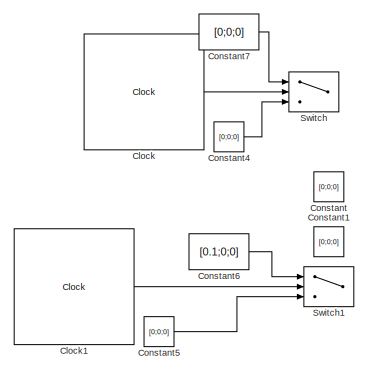
[diagram: root canvas - part 1/2, top left region]
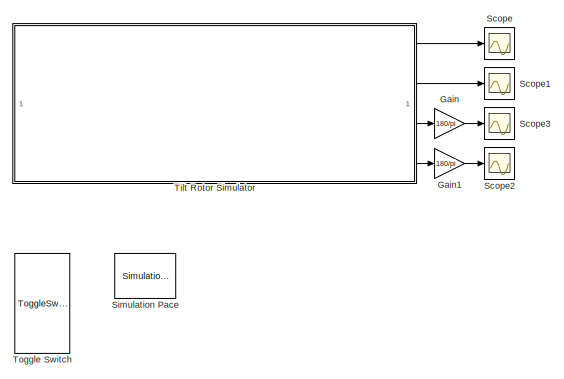
[diagram: root canvas - part 2/2, bottom right region]
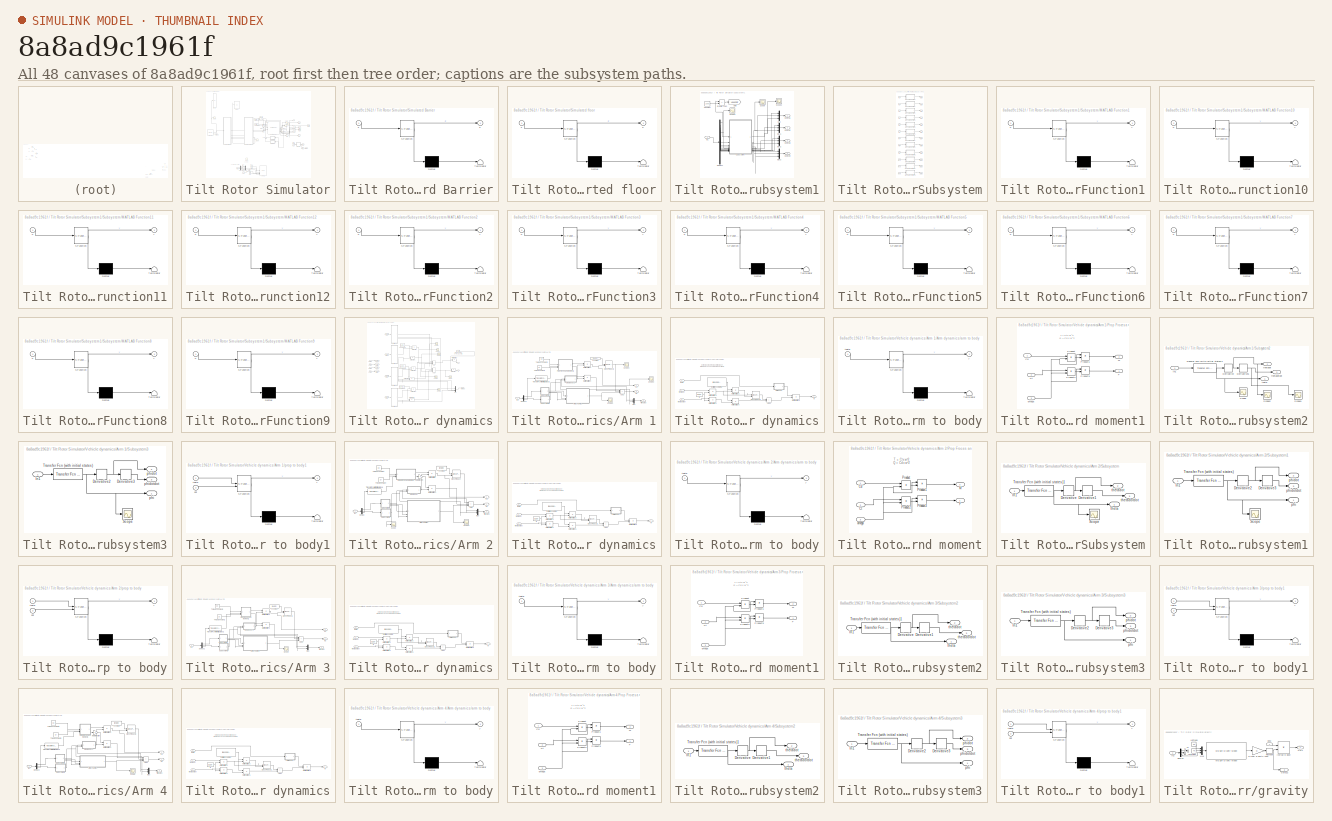
[diagram: thumbnail index - all 48 canvases of the model, root first then tree order]
MODEL slx_8a8ad9c1961f
KIND model
CONFIG AbsTol = auto
CONFIG EnableMultiTasking = off
CONFIG FixedStep = 0.0025
CONFIG InitFcn = startup
CONFIG MaxStep = auto
CONFIG MinStep = auto
CONFIG RelTol = 1e-3
CONFIG SampleTimeConstraint = Unconstrained
CONFIG SolverName = FixedStepAuto
CONFIG StartTime = 0.0
CONFIG StopTime = 40
WORKSPACE source: mxarray member
WORKSPACE Cd = 2.24197803e-06
WORKSPACE Ct = 0.00010297
WORKSPACE Ixx = 113600
WORKSPACE Iyy = 113600
WORKSPACE Izz = 22620
WORKSPACE h = 0.05
BLOCK [Clock] Clock
  Decimation = 1
  DisplayTime = on
BLOCK [Clock] Clock1
  Decimation = 1
  DisplayTime = on
BLOCK [Constant] Constant
  Value = [0;0;0]
BLOCK [Constant] Constant1
  Value = [0;0;0]
BLOCK [Constant] Constant4
  Value = [0;0;0]
BLOCK [Constant] Constant5
  Value = [0;0;0]
BLOCK [Constant] Constant6
  Value = [0.1;0;0]
BLOCK [Constant] Constant7
  Value = [0;0;0]
BLOCK [Gain] Gain
  Gain = 180/pi
BLOCK [Gain] Gain1
  Gain = 180/pi
BLOCK [Scope] Scope
  Floating = off
  NumInputPorts = 1
  ScopeSpecificationString = Simulink.scopes.TimeScopeBlockCfg('CurrentConfiguration', extmgr.ConfigurationSet(extmgr.Configuration('Core','General UI',true),extmgr.Configuration('Core','Source UI',true),extmgr.Configuration('Sources','WiredSimulink',true,'DataLoggingVariableName','ScopeData1'),extmgr.Configuration('Visuals','Time Domain',true,'SerializedDisplays',{struct('MinYLimReal','-1.00000','MaxYLimReal','1.00000','YLab...<+1437ch>
BLOCK [Scope] Scope1
  Floating = off
  NumInputPorts = 1
  ScopeSpecificationString = Simulink.scopes.TimeScopeBlockCfg('CurrentConfiguration', extmgr.ConfigurationSet(extmgr.Configuration('Core','General UI',true),extmgr.Configuration('Core','Source UI',true),extmgr.Configuration('Sources','WiredSimulink',true,'DataLoggingVariableName','ScopeData2'),extmgr.Configuration('Visuals','Time Domain',true,'SerializedDisplays',{struct('MinYLimReal','-39.01088','MaxYLimReal','66.0137','YLa...<+1510ch>
BLOCK [Scope] Scope2
  Floating = off
  NumInputPorts = 1
  ScopeSpecificationString = Simulink.scopes.TimeScopeBlockCfg('CurrentConfiguration', extmgr.ConfigurationSet(extmgr.Configuration('Core','General UI',true),extmgr.Configuration('Core','Source UI',true),extmgr.Configuration('Sources','WiredSimulink',true,'DataLoggingVariableName','ScopeData3'),extmgr.Configuration('Visuals','Time Domain',true,'SerializedDisplays',{struct('MinYLimReal','-1.00000','MaxYLimReal','1.00000','YLab...<+1386ch>
BLOCK [Scope] Scope3
  Floating = off
  NumInputPorts = 1
  ScopeSpecificationString = Simulink.scopes.TimeScopeBlockCfg('CurrentConfiguration', extmgr.ConfigurationSet(extmgr.Configuration('Core','General UI',true),extmgr.Configuration('Core','Source UI',true),extmgr.Configuration('Sources','WiredSimulink',true,'DataLoggingVariableName','ScopeData4'),extmgr.Configuration('Visuals','Time Domain',true,'SerializedDisplays',{struct('MinYLimReal','-1.00000','MaxYLimReal','1.00000','YLab...<+1383ch>
BLOCK [Reference] Simulation Pace  REF=aerolibanimutils/Simulation Pace
  AttributesFormatString = %<SleepMode>\n%<SimulationPace> sec/sec
  SourceBlock = aerolibanimutils/Simulation Pace
  SourceType = Simulation Pace
BLOCK [Switch] Switch
  Criteria = u2 > Threshold
  InputSameDT = off
  SaturateOnIntegerOverflow = off
  Threshold = 5
BLOCK [Switch] Switch1
  Criteria = u2 > Threshold
  InputSameDT = off
  SaturateOnIntegerOverflow = off
  Threshold = 5
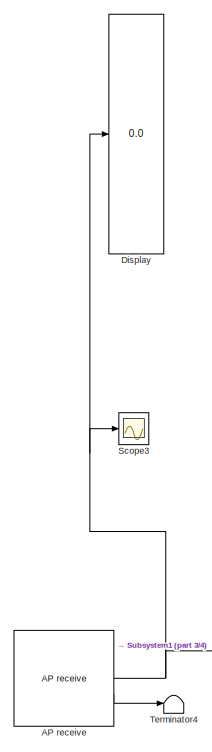
[diagram: Tilt Rotor Simulator - part 1/4, top left region]
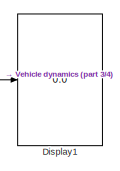
[diagram: Tilt Rotor Simulator - part 2/4, top left region]
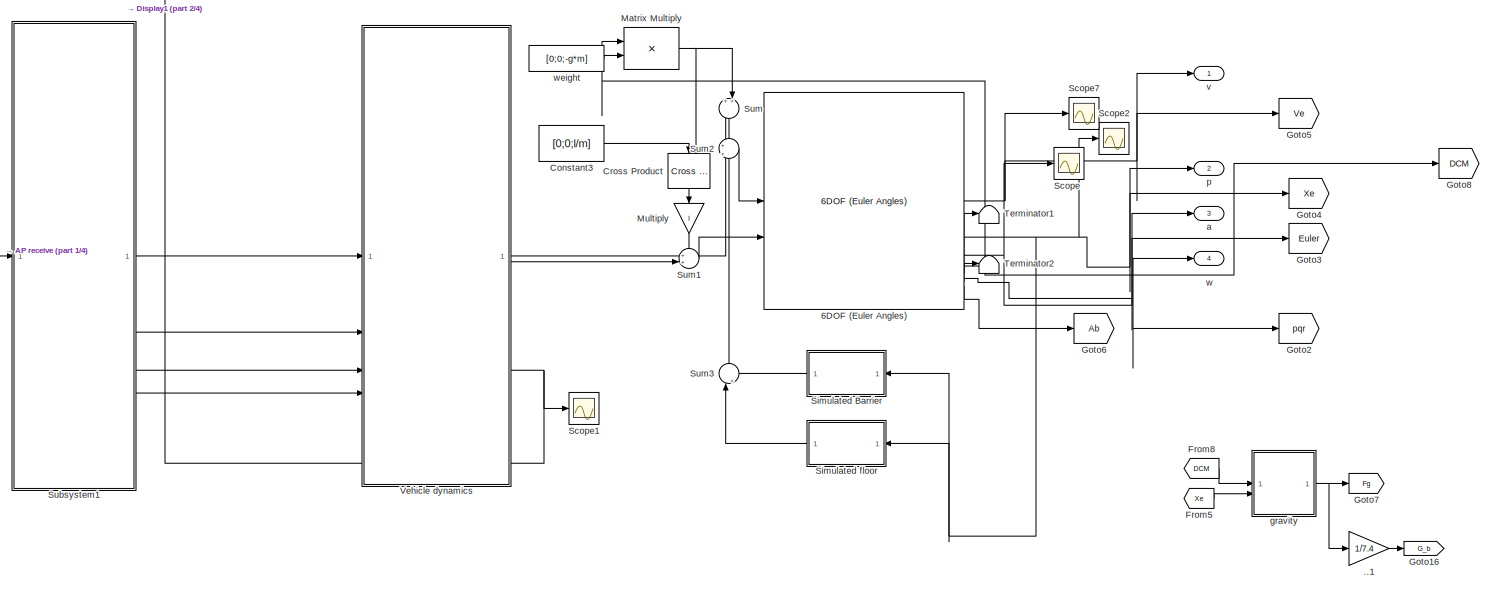
[diagram: Tilt Rotor Simulator - part 3/4, full width, middle band]
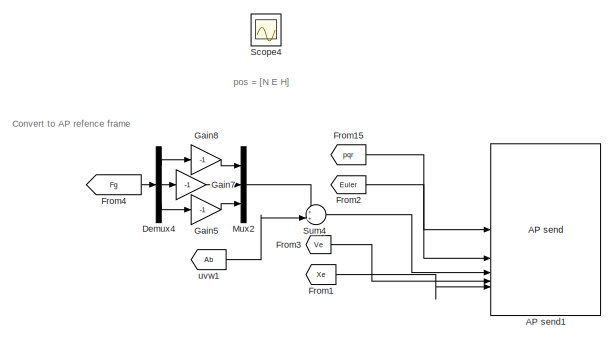
[diagram: Tilt Rotor Simulator - part 4/4, bottom center region]
BLOCK [SubSystem] Tilt Rotor Simulator
BLOCK [Gain] Tilt Rotor Simulator/..1
  Gain = 1/7.4
  OutDataTypeStr = Inherit: Same as input
  ParamDataTypeStr = Inherit: Same as input
  SaturateOnIntegerOverflow = on
BLOCK [Reference] Tilt Rotor Simulator/6DOF (Euler Angles)  REF=shared6dof/6DOF (Euler Angles)
  LibrarySourceBlock = aerolib6dof2/6DOF (Euler Angles)
  SourceBlock = shared6dof/6DOF (Euler Angles)
  SourceType = 6DOF EoM (Body Axis)
BLOCK [Reference] Tilt Rotor Simulator/AP receive  REF=AP_Conector/AP receive
  SourceBlock = AP_Conector/AP receive
  SourceType = SubSystem
BLOCK [Reference] Tilt Rotor Simulator/AP send1  REF=AP_Conector/AP send
  SourceBlock = AP_Conector/AP send
  SourceType = SubSystem
BLOCK [Constant] Tilt Rotor Simulator/Constant3
  Value = [0;0;l/m]
BLOCK [Reference] Tilt Rotor Simulator/Cross Product  REF=matrix_library/Cross Product
  LibrarySourceBlock = simulink/Matrix\nOperations/Cross Product
  NameLocation = left
  SourceBlock = matrix_library/Cross Product
  SourceType = CrossProduct
BLOCK [Demux] Tilt Rotor Simulator/Demux4
  Outputs = 3
BLOCK [Display] Tilt Rotor Simulator/Display
  Decimation = 1
BLOCK [Display] Tilt Rotor Simulator/Display1
  Decimation = 1
BLOCK [From] Tilt Rotor Simulator/From1
  CloseFcn = tagdialog Close
  GotoTag = Xe
  TagVisibility = global
BLOCK [From] Tilt Rotor Simulator/From15
  CloseFcn = tagdialog Close
  GotoTag = pqr
  TagVisibility = global
BLOCK [From] Tilt Rotor Simulator/From2
  CloseFcn = tagdialog Close
  GotoTag = Euler
  TagVisibility = global
BLOCK [From] Tilt Rotor Simulator/From3
  CloseFcn = tagdialog Close
  GotoTag = Ve
  TagVisibility = global
BLOCK [From] Tilt Rotor Simulator/From4
  CloseFcn = tagdialog Close
  GotoTag = Fg
  TagVisibility = global
BLOCK [From] Tilt Rotor Simulator/From5
  CloseFcn = tagdialog Close
  GotoTag = Xe
  TagVisibility = global
BLOCK [From] Tilt Rotor Simulator/From8
  CloseFcn = tagdialog Close
  GotoTag = DCM
  TagVisibility = global
BLOCK [Gain] Tilt Rotor Simulator/Gain5
  Gain = -1
BLOCK [Gain] Tilt Rotor Simulator/Gain7
  Gain = -1
BLOCK [Gain] Tilt Rotor Simulator/Gain8
  Gain = -1
BLOCK [Goto] Tilt Rotor Simulator/Goto16
  GotoTag = G_b
  TagVisibility = global
BLOCK [Goto] Tilt Rotor Simulator/Goto2
  GotoTag = pqr
  TagVisibility = global
BLOCK [Goto] Tilt Rotor Simulator/Goto3
  GotoTag = Euler
  TagVisibility = global
BLOCK [Goto] Tilt Rotor Simulator/Goto4
  GotoTag = Xe
  TagVisibility = global
BLOCK [Goto] Tilt Rotor Simulator/Goto5
  GotoTag = Ve
  TagVisibility = global
BLOCK [Goto] Tilt Rotor Simulator/Goto6
  GotoTag = Ab
  TagVisibility = global
BLOCK [Goto] Tilt Rotor Simulator/Goto7
  GotoTag = Fg
  TagVisibility = global
BLOCK [Goto] Tilt Rotor Simulator/Goto8
  GotoTag = DCM
  TagVisibility = global
BLOCK [Product] Tilt Rotor Simulator/Matrix Multiply
  Multiplication = Matrix(*)
BLOCK [Gain] Tilt Rotor Simulator/Multiply
  Gain = I
  Multiplication = Matrix(K*u)
  NameLocation = left
BLOCK [Mux] Tilt Rotor Simulator/Mux2
  DisplayOption = bar
  Inputs = 3
BLOCK [Scope] Tilt Rotor Simulator/Scope
  Floating = off
  NumInputPorts = 1
  ScopeSpecificationString = Simulink.scopes.TimeScopeBlockCfg('CurrentConfiguration', extmgr.ConfigurationSet(extmgr.Configuration('Core','General UI',true),extmgr.Configuration('Core','Source UI',true),extmgr.Configuration('Sources','WiredSimulink',true,'DataLoggingVariableName','ScopeData5'),extmgr.Configuration('Visuals','Time Domain',true,'SerializedDisplays',{struct('MinYLimReal','-3.92499','MaxYLimReal','3.92638','YLab...<+1598ch>
BLOCK [Scope] Tilt Rotor Simulator/Scope1
  Floating = off
  NumInputPorts = 1
  ScopeSpecificationString = Simulink.scopes.TimeScopeBlockCfg('CurrentConfiguration', extmgr.ConfigurationSet(extmgr.Configuration('Core','General UI',true),extmgr.Configuration('Core','Source UI',true),extmgr.Configuration('Sources','WiredSimulink',true,'DataLoggingVariableName','ScopeData1'),extmgr.Configuration('Visuals','Time Domain',true,'SerializedDisplays',{struct('MinYLimReal','-0.379','MaxYLimReal','0.14393','YLabel...<+1812ch>
BLOCK [Scope] Tilt Rotor Simulator/Scope2
  Floating = off
  NumInputPorts = 1
  ScopeSpecificationString = Simulink.scopes.TimeScopeBlockCfg('CurrentConfiguration', extmgr.ConfigurationSet(extmgr.Configuration('Core','General UI',true),extmgr.Configuration('Core','Source UI',true),extmgr.Configuration('Sources','WiredSimulink',true,'DataLoggingVariableName','ScopeData1'),extmgr.Configuration('Visuals','Time Domain',true,'SerializedDisplays',{struct('MinYLimReal','-5.90262','MaxYLimReal','2.91183','YLab...<+1598ch>
BLOCK [Scope] Tilt Rotor Simulator/Scope3
  Floating = off
  NumInputPorts = 1
  ScopeSpecificationString = Simulink.scopes.TimeScopeBlockCfg('CurrentConfiguration', extmgr.ConfigurationSet(extmgr.Configuration('Core','General UI',true),extmgr.Configuration('Core','Source UI',true),extmgr.Configuration('Sources','WiredSimulink',true,'DataLoggingVariableName','ScopeData1'),extmgr.Configuration('Visuals','Time Domain',true,'SerializedDisplays',{struct('MinYLimReal','-8191.375','MaxYLimReal','73722.375','Y...<+1753ch>
BLOCK [Scope] Tilt Rotor Simulator/Scope4
  Floating = off
  NumInputPorts = 1
  ScopeSpecificationString = Simulink.scopes.TimeScopeBlockCfg('CurrentConfiguration', extmgr.ConfigurationSet(extmgr.Configuration('Core','General UI',true),extmgr.Configuration('Core','Source UI',true),extmgr.Configuration('Sources','WiredSimulink',true,'DataLoggingVariableName','ScopeData1'),extmgr.Configuration('Visuals','Time Domain',true),extmgr.Configuration('Tools','Plot Navigation',true),extmgr.Configuration('Tools',...<+40ch>
BLOCK [Scope] Tilt Rotor Simulator/Scope7
  Floating = off
  NumInputPorts = 1
  ScopeSpecificationString = Simulink.scopes.TimeScopeBlockCfg('CurrentConfiguration', extmgr.ConfigurationSet(extmgr.Configuration('Core','General UI',true),extmgr.Configuration('Core','Source UI',true),extmgr.Configuration('Sources','WiredSimulink',true,'DataLoggingVariableName','ScopeData4'),extmgr.Configuration('Visuals','Time Domain',true,'SerializedDisplays',{struct('MinYLimReal','-1.00000','MaxYLimReal','1.00000','YLab...<+1462ch>
BLOCK [SubSystem] Tilt Rotor Simulator/Simulated Barrier
  Commented = on
  ErrorFcn = Stateflow.Translate.translate
  LibrarySourceBlock = simulink/User-Defined\nFunctions/MATLAB Function
  PermitHierarchicalResolution = ExplicitOnly
  SFBlockType = MATLAB Function
  TreatAsAtomicUnit = on
BLOCK [Demux] Tilt Rotor Simulator/Simulated Barrier/ Demux 
  Outputs = 1
BLOCK [S-Function] Tilt Rotor Simulator/Simulated Barrier/ SFunction 
  EnableBusSupport = off
  FunctionName = sf_sfun
  Parameters = A,E,thickness,x1,x2
  PortCounts = [1 2]
  SFcnIsStateOwnerBlock = off
  SFunctionDeploymentMode = off
  Tag = Stateflow S-Function 22
BLOCK [Terminator] Tilt Rotor Simulator/Simulated Barrier/ Terminator 
BLOCK [Outport] Tilt Rotor Simulator/Simulated Barrier/F
BLOCK [Inport] Tilt Rotor Simulator/Simulated Barrier/x
BLOCK [SubSystem] Tilt Rotor Simulator/Simulated floor
  ErrorFcn = Stateflow.Translate.translate
  LibrarySourceBlock = simulink/User-Defined\nFunctions/MATLAB Function
  PermitHierarchicalResolution = ExplicitOnly
  SFBlockType = MATLAB Function
  TreatAsAtomicUnit = on
BLOCK [Demux] Tilt Rotor Simulator/Simulated floor/ Demux 
  Outputs = 1
BLOCK [S-Function] Tilt Rotor Simulator/Simulated floor/ SFunction 
  EnableBusSupport = on
  FunctionName = sf_sfun
  Parameters = A,E,thickness,x1,x2
  PortCounts = [1 2]
  SFcnIsStateOwnerBlock = off
  SFunctionDeploymentMode = off
  Tag = Stateflow S-Function 20
BLOCK [Terminator] Tilt Rotor Simulator/Simulated floor/ Terminator 
BLOCK [Outport] Tilt Rotor Simulator/Simulated floor/F
BLOCK [Inport] Tilt Rotor Simulator/Simulated floor/x
BLOCK [SubSystem] Tilt Rotor Simulator/Subsystem1
BLOCK [Constant] Tilt Rotor Simulator/Subsystem1/Constant
  Value = 1000
BLOCK [Outport] Tilt Rotor Simulator/Subsystem1/Control1
BLOCK [Outport] Tilt Rotor Simulator/Subsystem1/Control2
  Port = 2
BLOCK [Outport] Tilt Rotor Simulator/Subsystem1/Control3
  Port = 3
BLOCK [Outport] Tilt Rotor Simulator/Subsystem1/Control4
  Port = 4
BLOCK [Demux] Tilt Rotor Simulator/Subsystem1/Demux1
  Outputs = 16
BLOCK [Goto] Tilt Rotor Simulator/Subsystem1/Goto
  GotoTag = Use6DOF
  TagVisibility = global
BLOCK [RelationalOperator] Tilt Rotor Simulator/Subsystem1/GreaterThan
  InputSameDT = off
  Operator = >
  OutDataTypeStr = boolean
  RndMeth = Simplest
BLOCK [Inport] Tilt Rotor Simulator/Subsystem1/In1
BLOCK [Mux] Tilt Rotor Simulator/Subsystem1/Mux
  DisplayOption = bar
  Inputs = 3
BLOCK [Mux] Tilt Rotor Simulator/Subsystem1/Mux1
  DisplayOption = bar
  Inputs = 3
BLOCK [Mux] Tilt Rotor Simulator/Subsystem1/Mux2
  DisplayOption = bar
  Inputs = 3
BLOCK [Mux] Tilt Rotor Simulator/Subsystem1/Mux3
  DisplayOption = bar
  Inputs = 3
BLOCK [Scope] Tilt Rotor Simulator/Subsystem1/Scope
  Floating = off
  NumInputPorts = 1
  ScopeSpecificationString = Simulink.scopes.TimeScopeBlockCfg('CurrentConfiguration', extmgr.ConfigurationSet(extmgr.Configuration('Core','General UI',true),extmgr.Configuration('Core','Source UI',true),extmgr.Configuration('Sources','WiredSimulink',true,'DataLoggingVariableName','ScopeData1'),extmgr.Configuration('Visuals','Time Domain',true,'SerializedDisplays',{struct('MinYLimReal','-0.13175','MaxYLimReal','0.23931','YLab...<+1439ch>
BLOCK [Scope] Tilt Rotor Simulator/Subsystem1/Scope1
  Floating = off
  NumInputPorts = 1
  ScopeSpecificationString = Simulink.scopes.TimeScopeBlockCfg('CurrentConfiguration', extmgr.ConfigurationSet(extmgr.Configuration('Core','General UI',true),extmgr.Configuration('Core','Source UI',true),extmgr.Configuration('Sources','WiredSimulink',true,'DataLoggingVariableName','ScopeData1'),extmgr.Configuration('Visuals','Time Domain',true,'SerializedDisplays',{struct('MinYLimReal','1545.00000','MaxYLimReal','3545.00000',...<+1389ch>
BLOCK [Scope] Tilt Rotor Simulator/Subsystem1/Scope2
  Floating = off
  NumInputPorts = 1
  ScopeSpecificationString = Simulink.scopes.TimeScopeBlockCfg('CurrentConfiguration', extmgr.ConfigurationSet(extmgr.Configuration('Core','General UI',true),extmgr.Configuration('Core','Source UI',true),extmgr.Configuration('Sources','WiredSimulink',true,'DataLoggingVariableName','ScopeData2'),extmgr.Configuration('Visuals','Time Domain',true,'SerializedDisplays',{struct('MinYLimReal','346.265','MaxYLimReal','546.265','YLabe...<+1466ch>
BLOCK [SubSystem] Tilt Rotor Simulator/Subsystem1/Subsystem
BLOCK [Inport] Tilt Rotor Simulator/Subsystem1/Subsystem/In1
BLOCK [Inport] Tilt Rotor Simulator/Subsystem1/Subsystem/In10
  Port = 10
BLOCK [Inport] Tilt Rotor Simulator/Subsystem1/Subsystem/In11
  Port = 11
BLOCK [Inport] Tilt Rotor Simulator/Subsystem1/Subsystem/In12
  Port = 12
BLOCK [Inport] Tilt Rotor Simulator/Subsystem1/Subsystem/In2
  Port = 2
BLOCK [Inport] Tilt Rotor Simulator/Subsystem1/Subsystem/In3
  Port = 3
BLOCK [Inport] Tilt Rotor Simulator/Subsystem1/Subsystem/In4
  Port = 4
BLOCK [Inport] Tilt Rotor Simulator/Subsystem1/Subsystem/In5
  Port = 5
BLOCK [Inport] Tilt Rotor Simulator/Subsystem1/Subsystem/In6
  Port = 6
BLOCK [Inport] Tilt Rotor Simulator/Subsystem1/Subsystem/In7
  Port = 7
BLOCK [Inport] Tilt Rotor Simulator/Subsystem1/Subsystem/In8
  Port = 8
BLOCK [Inport] Tilt Rotor Simulator/Subsystem1/Subsystem/In9
  Port = 9
BLOCK [SubSystem] Tilt Rotor Simulator/Subsystem1/Subsystem/MATLAB Function1
  ErrorFcn = Stateflow.Translate.translate
  LibrarySourceBlock = simulink/User-Defined\nFunctions/MATLAB Function
  PermitHierarchicalResolution = ExplicitOnly
  SFBlockType = MATLAB Function
  TreatAsAtomicUnit = on
BLOCK [Demux] Tilt Rotor Simulator/Subsystem1/Subsystem/MATLAB Function1/ Demux 
  Outputs = 1
BLOCK [S-Function] Tilt Rotor Simulator/Subsystem1/Subsystem/MATLAB Function1/ SFunction 
  EnableBusSupport = on
  FunctionName = sf_sfun
  Parameters = max_in,max_out,min_in,min_out
  PortCounts = [1 2]
  SFcnIsStateOwnerBlock = off
  SFunctionDeploymentMode = off
  Tag = Stateflow S-Function 1
BLOCK [Terminator] Tilt Rotor Simulator/Subsystem1/Subsystem/MATLAB Function1/ Terminator 
BLOCK [Inport] Tilt Rotor Simulator/Subsystem1/Subsystem/MATLAB Function1/u
BLOCK [Outport] Tilt Rotor Simulator/Subsystem1/Subsystem/MATLAB Function1/y
BLOCK [SubSystem] Tilt Rotor Simulator/Subsystem1/Subsystem/MATLAB Function10
  ErrorFcn = Stateflow.Translate.translate
  LibrarySourceBlock = simulink/User-Defined\nFunctions/MATLAB Function
  PermitHierarchicalResolution = ExplicitOnly
  SFBlockType = MATLAB Function
  TreatAsAtomicUnit = on
BLOCK [Demux] Tilt Rotor Simulator/Subsystem1/Subsystem/MATLAB Function10/ Demux 
  Outputs = 1
BLOCK [S-Function] Tilt Rotor Simulator/Subsystem1/Subsystem/MATLAB Function10/ SFunction 
  EnableBusSupport = on
  FunctionName = sf_sfun
  Parameters = max_in,max_out,min_in,min_out
  PortCounts = [1 2]
  SFcnIsStateOwnerBlock = off
  SFunctionDeploymentMode = off
  Tag = Stateflow S-Function 14
BLOCK [Terminator] Tilt Rotor Simulator/Subsystem1/Subsystem/MATLAB Function10/ Terminator 
BLOCK [Inport] Tilt Rotor Simulator/Subsystem1/Subsystem/MATLAB Function10/u
BLOCK [Outport] Tilt Rotor Simulator/Subsystem1/Subsystem/MATLAB Function10/y
BLOCK [SubSystem] Tilt Rotor Simulator/Subsystem1/Subsystem/MATLAB Function11
  ErrorFcn = Stateflow.Translate.translate
  LibrarySourceBlock = simulink/User-Defined\nFunctions/MATLAB Function
  PermitHierarchicalResolution = ExplicitOnly
  SFBlockType = MATLAB Function
  TreatAsAtomicUnit = on
BLOCK [Demux] Tilt Rotor Simulator/Subsystem1/Subsystem/MATLAB Function11/ Demux 
  Outputs = 1
BLOCK [S-Function] Tilt Rotor Simulator/Subsystem1/Subsystem/MATLAB Function11/ SFunction 
  EnableBusSupport = on
  FunctionName = sf_sfun
  Parameters = max_in,max_out,min_in,min_out
  PortCounts = [1 2]
  SFcnIsStateOwnerBlock = off
  SFunctionDeploymentMode = off
  Tag = Stateflow S-Function 15
BLOCK [Terminator] Tilt Rotor Simulator/Subsystem1/Subsystem/MATLAB Function11/ Terminator 
BLOCK [Inport] Tilt Rotor Simulator/Subsystem1/Subsystem/MATLAB Function11/u
BLOCK [Outport] Tilt Rotor Simulator/Subsystem1/Subsystem/MATLAB Function11/y
BLOCK [SubSystem] Tilt Rotor Simulator/Subsystem1/Subsystem/MATLAB Function12
  ErrorFcn = Stateflow.Translate.translate
  LibrarySourceBlock = simulink/User-Defined\nFunctions/MATLAB Function
  PermitHierarchicalResolution = ExplicitOnly
  SFBlockType = MATLAB Function
  TreatAsAtomicUnit = on
BLOCK [Demux] Tilt Rotor Simulator/Subsystem1/Subsystem/MATLAB Function12/ Demux 
  Outputs = 1
BLOCK [S-Function] Tilt Rotor Simulator/Subsystem1/Subsystem/MATLAB Function12/ SFunction 
  EnableBusSupport = on
  FunctionName = sf_sfun
  Parameters = max_in,max_out,min_in,min_out
  PortCounts = [1 2]
  SFcnIsStateOwnerBlock = off
  SFunctionDeploymentMode = off
  Tag = Stateflow S-Function 18
BLOCK [Terminator] Tilt Rotor Simulator/Subsystem1/Subsystem/MATLAB Function12/ Terminator 
BLOCK [Inport] Tilt Rotor Simulator/Subsystem1/Subsystem/MATLAB Function12/u
BLOCK [Outport] Tilt Rotor Simulator/Subsystem1/Subsystem/MATLAB Function12/y
BLOCK [SubSystem] Tilt Rotor Simulator/Subsystem1/Subsystem/MATLAB Function2
  ErrorFcn = Stateflow.Translate.translate
  LibrarySourceBlock = simulink/User-Defined\nFunctions/MATLAB Function
  PermitHierarchicalResolution = ExplicitOnly
  SFBlockType = MATLAB Function
  TreatAsAtomicUnit = on
BLOCK [Demux] Tilt Rotor Simulator/Subsystem1/Subsystem/MATLAB Function2/ Demux 
  Outputs = 1
BLOCK [S-Function] Tilt Rotor Simulator/Subsystem1/Subsystem/MATLAB Function2/ SFunction 
  EnableBusSupport = on
  FunctionName = sf_sfun
  Parameters = max_in,max_out,min_in,min_out
  PortCounts = [1 2]
  SFcnIsStateOwnerBlock = off
  SFunctionDeploymentMode = off
  Tag = Stateflow S-Function 2
BLOCK [Terminator] Tilt Rotor Simulator/Subsystem1/Subsystem/MATLAB Function2/ Terminator 
BLOCK [Inport] Tilt Rotor Simulator/Subsystem1/Subsystem/MATLAB Function2/u
BLOCK [Outport] Tilt Rotor Simulator/Subsystem1/Subsystem/MATLAB Function2/y
BLOCK [SubSystem] Tilt Rotor Simulator/Subsystem1/Subsystem/MATLAB Function3
  ErrorFcn = Stateflow.Translate.translate
  LibrarySourceBlock = simulink/User-Defined\nFunctions/MATLAB Function
  PermitHierarchicalResolution = ExplicitOnly
  SFBlockType = MATLAB Function
  TreatAsAtomicUnit = on
BLOCK [Demux] Tilt Rotor Simulator/Subsystem1/Subsystem/MATLAB Function3/ Demux 
  Outputs = 1
BLOCK [S-Function] Tilt Rotor Simulator/Subsystem1/Subsystem/MATLAB Function3/ SFunction 
  EnableBusSupport = on
  FunctionName = sf_sfun
  Parameters = max_in,max_out,min_in,min_out
  PortCounts = [1 2]
  SFcnIsStateOwnerBlock = off
  SFunctionDeploymentMode = off
  Tag = Stateflow S-Function 3
BLOCK [Terminator] Tilt Rotor Simulator/Subsystem1/Subsystem/MATLAB Function3/ Terminator 
BLOCK [Inport] Tilt Rotor Simulator/Subsystem1/Subsystem/MATLAB Function3/u
BLOCK [Outport] Tilt Rotor Simulator/Subsystem1/Subsystem/MATLAB Function3/y
BLOCK [SubSystem] Tilt Rotor Simulator/Subsystem1/Subsystem/MATLAB Function4
  ErrorFcn = Stateflow.Translate.translate
  LibrarySourceBlock = simulink/User-Defined\nFunctions/MATLAB Function
  PermitHierarchicalResolution = ExplicitOnly
  SFBlockType = MATLAB Function
  TreatAsAtomicUnit = on
BLOCK [Demux] Tilt Rotor Simulator/Subsystem1/Subsystem/MATLAB Function4/ Demux 
  Outputs = 1
BLOCK [S-Function] Tilt Rotor Simulator/Subsystem1/Subsystem/MATLAB Function4/ SFunction 
  EnableBusSupport = on
  FunctionName = sf_sfun
  Parameters = max_in,max_out,min_in,min_out
  PortCounts = [1 2]
  SFcnIsStateOwnerBlock = off
  SFunctionDeploymentMode = off
  Tag = Stateflow S-Function 4
BLOCK [Terminator] Tilt Rotor Simulator/Subsystem1/Subsystem/MATLAB Function4/ Terminator 
BLOCK [Inport] Tilt Rotor Simulator/Subsystem1/Subsystem/MATLAB Function4/u
BLOCK [Outport] Tilt Rotor Simulator/Subsystem1/Subsystem/MATLAB Function4/y
BLOCK [SubSystem] Tilt Rotor Simulator/Subsystem1/Subsystem/MATLAB Function5
  ErrorFcn = Stateflow.Translate.translate
  LibrarySourceBlock = simulink/User-Defined\nFunctions/MATLAB Function
  PermitHierarchicalResolution = ExplicitOnly
  SFBlockType = MATLAB Function
  TreatAsAtomicUnit = on
BLOCK [Demux] Tilt Rotor Simulator/Subsystem1/Subsystem/MATLAB Function5/ Demux 
  Outputs = 1
BLOCK [S-Function] Tilt Rotor Simulator/Subsystem1/Subsystem/MATLAB Function5/ SFunction 
  EnableBusSupport = on
  FunctionName = sf_sfun
  Parameters = max_in,max_out,min_in,min_out
  PortCounts = [1 2]
  SFcnIsStateOwnerBlock = off
  SFunctionDeploymentMode = off
  Tag = Stateflow S-Function 5
BLOCK [Terminator] Tilt Rotor Simulator/Subsystem1/Subsystem/MATLAB Function5/ Terminator 
BLOCK [Inport] Tilt Rotor Simulator/Subsystem1/Subsystem/MATLAB Function5/u
BLOCK [Outport] Tilt Rotor Simulator/Subsystem1/Subsystem/MATLAB Function5/y
BLOCK [SubSystem] Tilt Rotor Simulator/Subsystem1/Subsystem/MATLAB Function6
  ErrorFcn = Stateflow.Translate.translate
  LibrarySourceBlock = simulink/User-Defined\nFunctions/MATLAB Function
  PermitHierarchicalResolution = ExplicitOnly
  SFBlockType = MATLAB Function
  TreatAsAtomicUnit = on
BLOCK [Demux] Tilt Rotor Simulator/Subsystem1/Subsystem/MATLAB Function6/ Demux 
  Outputs = 1
BLOCK [S-Function] Tilt Rotor Simulator/Subsystem1/Subsystem/MATLAB Function6/ SFunction 
  EnableBusSupport = on
  FunctionName = sf_sfun
  Parameters = max_in,max_out,min_in,min_out
  PortCounts = [1 2]
  SFcnIsStateOwnerBlock = off
  SFunctionDeploymentMode = off
  Tag = Stateflow S-Function 36
BLOCK [Terminator] Tilt Rotor Simulator/Subsystem1/Subsystem/MATLAB Function6/ Terminator 
BLOCK [Inport] Tilt Rotor Simulator/Subsystem1/Subsystem/MATLAB Function6/u
BLOCK [Outport] Tilt Rotor Simulator/Subsystem1/Subsystem/MATLAB Function6/y
BLOCK [SubSystem] Tilt Rotor Simulator/Subsystem1/Subsystem/MATLAB Function7
  ErrorFcn = Stateflow.Translate.translate
  LibrarySourceBlock = simulink/User-Defined\nFunctions/MATLAB Function
  PermitHierarchicalResolution = ExplicitOnly
  SFBlockType = MATLAB Function
  TreatAsAtomicUnit = on
BLOCK [Demux] Tilt Rotor Simulator/Subsystem1/Subsystem/MATLAB Function7/ Demux 
  Outputs = 1
BLOCK [S-Function] Tilt Rotor Simulator/Subsystem1/Subsystem/MATLAB Function7/ SFunction 
  EnableBusSupport = on
  FunctionName = sf_sfun
  Parameters = max_in,max_out,min_in,min_out
  PortCounts = [1 2]
  SFcnIsStateOwnerBlock = off
  SFunctionDeploymentMode = off
  Tag = Stateflow S-Function 6
BLOCK [Terminator] Tilt Rotor Simulator/Subsystem1/Subsystem/MATLAB Function7/ Terminator 
BLOCK [Inport] Tilt Rotor Simulator/Subsystem1/Subsystem/MATLAB Function7/u
BLOCK [Outport] Tilt Rotor Simulator/Subsystem1/Subsystem/MATLAB Function7/y
BLOCK [SubSystem] Tilt Rotor Simulator/Subsystem1/Subsystem/MATLAB Function8
  ErrorFcn = Stateflow.Translate.translate
  LibrarySourceBlock = simulink/User-Defined\nFunctions/MATLAB Function
  PermitHierarchicalResolution = ExplicitOnly
  SFBlockType = MATLAB Function
  TreatAsAtomicUnit = on
BLOCK [Demux] Tilt Rotor Simulator/Subsystem1/Subsystem/MATLAB Function8/ Demux 
  Outputs = 1
BLOCK [S-Function] Tilt Rotor Simulator/Subsystem1/Subsystem/MATLAB Function8/ SFunction 
  EnableBusSupport = on
  FunctionName = sf_sfun
  Parameters = max_in,max_out,min_in,min_out
  PortCounts = [1 2]
  SFcnIsStateOwnerBlock = off
  SFunctionDeploymentMode = off
  Tag = Stateflow S-Function 7
BLOCK [Terminator] Tilt Rotor Simulator/Subsystem1/Subsystem/MATLAB Function8/ Terminator 
BLOCK [Inport] Tilt Rotor Simulator/Subsystem1/Subsystem/MATLAB Function8/u
BLOCK [Outport] Tilt Rotor Simulator/Subsystem1/Subsystem/MATLAB Function8/y
BLOCK [SubSystem] Tilt Rotor Simulator/Subsystem1/Subsystem/MATLAB Function9
  ErrorFcn = Stateflow.Translate.translate
  LibrarySourceBlock = simulink/User-Defined\nFunctions/MATLAB Function
  PermitHierarchicalResolution = ExplicitOnly
  SFBlockType = MATLAB Function
  TreatAsAtomicUnit = on
BLOCK [Demux] Tilt Rotor Simulator/Subsystem1/Subsystem/MATLAB Function9/ Demux 
  Outputs = 1
BLOCK [S-Function] Tilt Rotor Simulator/Subsystem1/Subsystem/MATLAB Function9/ SFunction 
  EnableBusSupport = on
  FunctionName = sf_sfun
  Parameters = max_in,max_out,min_in,min_out
  PortCounts = [1 2]
  SFcnIsStateOwnerBlock = off
  SFunctionDeploymentMode = off
  Tag = Stateflow S-Function 19
BLOCK [Terminator] Tilt Rotor Simulator/Subsystem1/Subsystem/MATLAB Function9/ Terminator 
BLOCK [Inport] Tilt Rotor Simulator/Subsystem1/Subsystem/MATLAB Function9/u
BLOCK [Outport] Tilt Rotor Simulator/Subsystem1/Subsystem/MATLAB Function9/y
BLOCK [Outport] Tilt Rotor Simulator/Subsystem1/Subsystem/Out1
BLOCK [Outport] Tilt Rotor Simulator/Subsystem1/Subsystem/Out10
  Port = 10
BLOCK [Outport] Tilt Rotor Simulator/Subsystem1/Subsystem/Out11
  Port = 11
BLOCK [Outport] Tilt Rotor Simulator/Subsystem1/Subsystem/Out12
  Port = 12
BLOCK [Outport] Tilt Rotor Simulator/Subsystem1/Subsystem/Out2
  Port = 2
BLOCK [Outport] Tilt Rotor Simulator/Subsystem1/Subsystem/Out3
  Port = 3
BLOCK [Outport] Tilt Rotor Simulator/Subsystem1/Subsystem/Out4
  Port = 4
BLOCK [Outport] Tilt Rotor Simulator/Subsystem1/Subsystem/Out5
  Port = 5
BLOCK [Outport] Tilt Rotor Simulator/Subsystem1/Subsystem/Out6
  Port = 6
BLOCK [Outport] Tilt Rotor Simulator/Subsystem1/Subsystem/Out7
  Port = 7
BLOCK [Outport] Tilt Rotor Simulator/Subsystem1/Subsystem/Out8
  Port = 8
BLOCK [Outport] Tilt Rotor Simulator/Subsystem1/Subsystem/Out9
  Port = 9
BLOCK [Sum] Tilt Rotor Simulator/Sum
  Inputs = ++|
  NameLocation = left
BLOCK [Sum] Tilt Rotor Simulator/Sum1
  Inputs = ++|
BLOCK [Sum] Tilt Rotor Simulator/Sum2
  Inputs = +|+
BLOCK [Sum] Tilt Rotor Simulator/Sum3
  Inputs = |++
  NameLocation = right
BLOCK [Sum] Tilt Rotor Simulator/Sum4
  Inputs = ++|
BLOCK [Terminator] Tilt Rotor Simulator/Terminator1
BLOCK [Terminator] Tilt Rotor Simulator/Terminator2
BLOCK [Terminator] Tilt Rotor Simulator/Terminator4
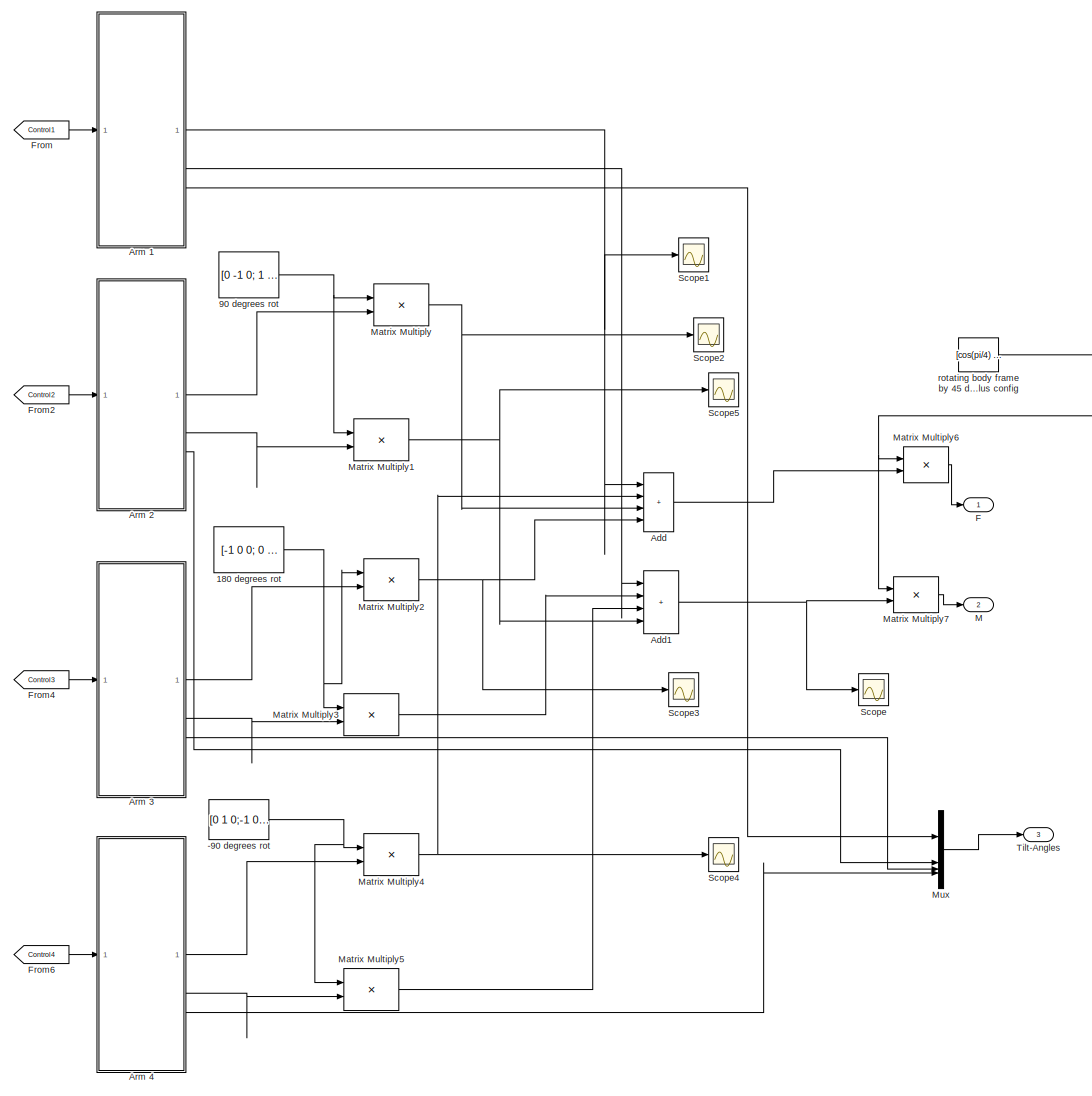
[diagram: Tilt Rotor Simulator/Vehicle dynamics - part 1/2, most of the canvas]
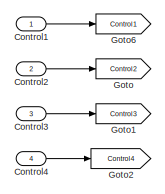
[diagram: Tilt Rotor Simulator/Vehicle dynamics - part 2/2, middle left region]
BLOCK [SubSystem] Tilt Rotor Simulator/Vehicle dynamics
BLOCK [Constant] Tilt Rotor Simulator/Vehicle dynamics/-90 degrees rot
  Value = [0 1 0;-1 0 0;0 0 1]
BLOCK [Constant] Tilt Rotor Simulator/Vehicle dynamics/180 degrees rot
  Value = [-1 0 0; 0 -1 0; 0 0 1]
BLOCK [Constant] Tilt Rotor Simulator/Vehicle dynamics/90 degrees rot
  Value = [0 -1 0; 1 0 0;0 0 1]
BLOCK [Sum] Tilt Rotor Simulator/Vehicle dynamics/Add
  IconShape = rectangular
  Inputs = ++++
BLOCK [Sum] Tilt Rotor Simulator/Vehicle dynamics/Add1
  IconShape = rectangular
  Inputs = ++++
BLOCK [SubSystem] Tilt Rotor Simulator/Vehicle dynamics/Arm 1
BLOCK [Sum] Tilt Rotor Simulator/Vehicle dynamics/Arm 1/Add1
  IconShape = rectangular
  Inputs = +++
BLOCK [SubSystem] Tilt Rotor Simulator/Vehicle dynamics/Arm 1/Arm dynamics
BLOCK [Sum] Tilt Rotor Simulator/Vehicle dynamics/Arm 1/Arm dynamics/Add1
  IconShape = rectangular
BLOCK [Reference] Tilt Rotor Simulator/Vehicle dynamics/Arm 1/Arm dynamics/Cross Product1  REF=matrix_library/Cross Product
  LibrarySourceBlock = simulink/Matrix\nOperations/Cross Product
  SourceBlock = matrix_library/Cross Product
  SourceType = CrossProduct
BLOCK [Outport] Tilt Rotor Simulator/Vehicle dynamics/Arm 1/Arm dynamics/M
BLOCK [Product] Tilt Rotor Simulator/Vehicle dynamics/Arm 1/Arm dynamics/Matrix Multiply2
  Multiplication = Matrix(*)
BLOCK [Product] Tilt Rotor Simulator/Vehicle dynamics/Arm 1/Arm dynamics/Matrix Multiply3
BLOCK [Product] Tilt Rotor Simulator/Vehicle dynamics/Arm 1/Arm dynamics/Matrix Multiply4
BLOCK [Product] Tilt Rotor Simulator/Vehicle dynamics/Arm 1/Arm dynamics/Matrix Multiply5
  Multiplication = Matrix(*)
BLOCK [Product] Tilt Rotor Simulator/Vehicle dynamics/Arm 1/Arm dynamics/Matrix Multiply6
  Multiplication = Matrix(*)
BLOCK [SubSystem] Tilt Rotor Simulator/Vehicle dynamics/Arm 1/Arm dynamics/arm to body
  ErrorFcn = Stateflow.Translate.translate
  LibrarySourceBlock = simulink/User-Defined\nFunctions/MATLAB Function
  PermitHierarchicalResolution = ExplicitOnly
  SFBlockType = MATLAB Function
  TreatAsAtomicUnit = on
BLOCK [Demux] Tilt Rotor Simulator/Vehicle dynamics/Arm 1/Arm dynamics/arm to body/ Demux 
  Outputs = 1
BLOCK [S-Function] Tilt Rotor Simulator/Vehicle dynamics/Arm 1/Arm dynamics/arm to body/ SFunction 
  EnableBusSupport = on
  FunctionName = sf_sfun
  PortCounts = [1 2]
  SFcnIsStateOwnerBlock = off
  SFunctionDeploymentMode = off
  Tag = Stateflow S-Function 9
BLOCK [Terminator] Tilt Rotor Simulator/Vehicle dynamics/Arm 1/Arm dynamics/arm to body/ Terminator 
BLOCK [Inport] Tilt Rotor Simulator/Vehicle dynamics/Arm 1/Arm dynamics/arm to body/theta
BLOCK [Outport] Tilt Rotor Simulator/Vehicle dynamics/Arm 1/Arm dynamics/arm to body/y
BLOCK [Constant] Tilt Rotor Simulator/Vehicle dynamics/Arm 1/Arm dynamics/i2
  Value = [1 ,0 ,0]'
BLOCK [Constant] Tilt Rotor Simulator/Vehicle dynamics/Arm 1/Arm dynamics/inertial tensor of arm1
  Value = [0.012 0 0; 0 0.008 0;0 0 0.019]
BLOCK [Inport] Tilt Rotor Simulator/Vehicle dynamics/Arm 1/Arm dynamics/theta
BLOCK [Inport] Tilt Rotor Simulator/Vehicle dynamics/Arm 1/Arm dynamics/thetadot
  Port = 2
BLOCK [Inport] Tilt Rotor Simulator/Vehicle dynamics/Arm 1/Arm dynamics/thetadotdot
  Port = 3
BLOCK [Reference] Tilt Rotor Simulator/Vehicle dynamics/Arm 1/Cross Product1  REF=matrix_library/Cross Product
  LibrarySourceBlock = simulink/Matrix\nOperations/Cross Product
  SourceBlock = matrix_library/Cross Product
  SourceType = CrossProduct
BLOCK [Demux] Tilt Rotor Simulator/Vehicle dynamics/Arm 1/Demux2
  Outputs = 3
BLOCK [Outport] Tilt Rotor Simulator/Vehicle dynamics/Arm 1/F1
BLOCK [Inport] Tilt Rotor Simulator/Vehicle dynamics/Arm 1/In3
BLOCK [Outport] Tilt Rotor Simulator/Vehicle dynamics/Arm 1/M1
  Port = 2
BLOCK [Product] Tilt Rotor Simulator/Vehicle dynamics/Arm 1/Matrix Multiply2
BLOCK [Product] Tilt Rotor Simulator/Vehicle dynamics/Arm 1/Matrix Multiply3
BLOCK [Mux] Tilt Rotor Simulator/Vehicle dynamics/Arm 1/Mux
  DisplayOption = bar
  Inputs = 2
BLOCK [SubSystem] Tilt Rotor Simulator/Vehicle dynamics/Arm 1/Prop Froces and moment1
BLOCK [Inport] Tilt Rotor Simulator/Vehicle dynamics/Arm 1/Prop Froces and moment1/Cd
BLOCK [Inport] Tilt Rotor Simulator/Vehicle dynamics/Arm 1/Prop Froces and moment1/Ct
  Port = 2
BLOCK [Outport] Tilt Rotor Simulator/Vehicle dynamics/Arm 1/Prop Froces and moment1/F
BLOCK [Outport] Tilt Rotor Simulator/Vehicle dynamics/Arm 1/Prop Froces and moment1/M
  Port = 2
BLOCK [Product] Tilt Rotor Simulator/Vehicle dynamics/Arm 1/Prop Froces and moment1/Product
BLOCK [Product] Tilt Rotor Simulator/Vehicle dynamics/Arm 1/Prop Froces and moment1/Product1
BLOCK [Product] Tilt Rotor Simulator/Vehicle dynamics/Arm 1/Prop Froces and moment1/Product2
BLOCK [Product] Tilt Rotor Simulator/Vehicle dynamics/Arm 1/Prop Froces and moment1/Product3
BLOCK [Inport] Tilt Rotor Simulator/Vehicle dynamics/Arm 1/Prop Froces and moment1/omega
  Port = 3
BLOCK [Scope] Tilt Rotor Simulator/Vehicle dynamics/Arm 1/Scope1
  Floating = off
  NumInputPorts = 1
  ScopeSpecificationString = Simulink.scopes.TimeScopeBlockCfg('CurrentConfiguration', extmgr.ConfigurationSet(extmgr.Configuration('Core','General UI',true),extmgr.Configuration('Core','Source UI',true),extmgr.Configuration('Sources','WiredSimulink',true),extmgr.Configuration('Visuals','Time Domain',true,'SerializedDisplays',{struct('MinYLimReal','-0.37242','MaxYLimReal','1.29266','YLabelReal','','MinYLimMag','0.00000','MaxY...<+1397ch>
BLOCK [Scope] Tilt Rotor Simulator/Vehicle dynamics/Arm 1/Scope2
  Floating = off
  NumInputPorts = 1
  ScopeSpecificationString = Simulink.scopes.TimeScopeBlockCfg('CurrentConfiguration', extmgr.ConfigurationSet(extmgr.Configuration('Core','General UI',true),extmgr.Configuration('Core','Source UI',true),extmgr.Configuration('Sources','WiredSimulink',true,'DataLoggingVariableName','ScopeData9'),extmgr.Configuration('Visuals','Time Domain',true,'SerializedDisplays',{struct('MinYLimReal','-16.60414','MaxYLimReal','19.57209','YL...<+1425ch>
BLOCK [Scope] Tilt Rotor Simulator/Vehicle dynamics/Arm 1/Scope3
  Floating = off
  NumInputPorts = 1
  ScopeSpecificationString = Simulink.scopes.TimeScopeBlockCfg('CurrentConfiguration', extmgr.ConfigurationSet(extmgr.Configuration('Core','General UI',true),extmgr.Configuration('Core','Source UI',true),extmgr.Configuration('Sources','WiredSimulink',true,'DataLoggingVariableName','ScopeData11'),extmgr.Configuration('Visuals','Time Domain',true,'SerializedDisplays',{struct('MinYLimReal','-7.96069','MaxYLimReal','1.6023','YLab...<+1507ch>
BLOCK [SubSystem] Tilt Rotor Simulator/Vehicle dynamics/Arm 1/Subsystem2
BLOCK [Derivative] Tilt Rotor Simulator/Vehicle dynamics/Arm 1/Subsystem2/Derivative
BLOCK [Derivative] Tilt Rotor Simulator/Vehicle dynamics/Arm 1/Subsystem2/Derivative1
  CoefficientInTFapproximation = 1
BLOCK [Inport] Tilt Rotor Simulator/Vehicle dynamics/Arm 1/Subsystem2/In1
BLOCK [Scope] Tilt Rotor Simulator/Vehicle dynamics/Arm 1/Subsystem2/Scope
  Floating = off
  NumInputPorts = 1
  ScopeSpecificationString = Simulink.scopes.TimeScopeBlockCfg('CurrentConfiguration', extmgr.ConfigurationSet(extmgr.Configuration('Core','General UI',true),extmgr.Configuration('Core','Source UI',true),extmgr.Configuration('Sources','WiredSimulink',true),extmgr.Configuration('Visuals','Time Domain',true,'SerializedDisplays',{struct('MinYLimReal','-0.09632','MaxYLimReal','0.86688','YLabelReal','','MinYLimMag','0.00000','MaxY...<+1382ch>
BLOCK [Scope] Tilt Rotor Simulator/Vehicle dynamics/Arm 1/Subsystem2/Scope1
  Floating = off
  NumInputPorts = 1
  ScopeSpecificationString = Simulink.scopes.TimeScopeBlockCfg('CurrentConfiguration', extmgr.ConfigurationSet(extmgr.Configuration('Core','General UI',true),extmgr.Configuration('Core','Source UI',true),extmgr.Configuration('Sources','WiredSimulink',true),extmgr.Configuration('Visuals','Time Domain',true,'SerializedDisplays',{struct('MinYLimReal','-31.03535','MaxYLimReal','107.72169','YLabelReal','','MinYLimMag','0.00000','M...<+1371ch>
BLOCK [Scope] Tilt Rotor Simulator/Vehicle dynamics/Arm 1/Subsystem2/Scope2
  Floating = off
  NumInputPorts = 1
  ScopeSpecificationString = Simulink.scopes.TimeScopeBlockCfg('CurrentConfiguration', extmgr.ConfigurationSet(extmgr.Configuration('Core','General UI',true),extmgr.Configuration('Core','Source UI',true),extmgr.Configuration('Sources','WiredSimulink',true),extmgr.Configuration('Visuals','Time Domain',true,'SerializedDisplays',{struct('MinYLimReal','-0.8012','MaxYLimReal','3.80164','YLabelReal','','MinYLimMag','0.00000','MaxYL...<+1357ch>
BLOCK [Reference] Tilt Rotor Simulator/Vehicle dynamics/Arm 1/Subsystem2/Transfer Fcn (with initial states)1  REF=simulink_extras/Additional
Linear/Transfer Fcn
(with initial states)
  SourceBlock = simulink_extras/Additional\nLinear/Transfer Fcn\n(with initial states)
  SourceType = Transfer Function with Initial States
BLOCK [Outport] Tilt Rotor Simulator/Vehicle dynamics/Arm 1/Subsystem2/theta
BLOCK [Outport] Tilt Rotor Simulator/Vehicle dynamics/Arm 1/Subsystem2/thetadot
  Port = 2
BLOCK [Outport] Tilt Rotor Simulator/Vehicle dynamics/Arm 1/Subsystem2/thetadotdot
  Port = 3
BLOCK [SubSystem] Tilt Rotor Simulator/Vehicle dynamics/Arm 1/Subsystem3
BLOCK [Derivative] Tilt Rotor Simulator/Vehicle dynamics/Arm 1/Subsystem3/Derivative2
BLOCK [Derivative] Tilt Rotor Simulator/Vehicle dynamics/Arm 1/Subsystem3/Derivative3
BLOCK [Inport] Tilt Rotor Simulator/Vehicle dynamics/Arm 1/Subsystem3/In1
BLOCK [Scope] Tilt Rotor Simulator/Vehicle dynamics/Arm 1/Subsystem3/Scope
  Floating = off
  NumInputPorts = 1
  ScopeSpecificationString = Simulink.scopes.TimeScopeBlockCfg('CurrentConfiguration', extmgr.ConfigurationSet(extmgr.Configuration('Core','General UI',true),extmgr.Configuration('Core','Source UI',true),extmgr.Configuration('Sources','WiredSimulink',true,'DataLoggingVariableName','ScopeData8'),extmgr.Configuration('Visuals','Time Domain',true,'SerializedDisplays',{struct('MinYLimReal','-0.68521','MaxYLimReal','0.07613','YLab...<+1393ch>
BLOCK [Reference] Tilt Rotor Simulator/Vehicle dynamics/Arm 1/Subsystem3/Transfer Fcn (with initial states)  REF=simulink_extras/Additional
Linear/Transfer Fcn
(with initial states)
  SourceBlock = simulink_extras/Additional\nLinear/Transfer Fcn\n(with initial states)
  SourceType = Transfer Function with Initial States
BLOCK [Outport] Tilt Rotor Simulator/Vehicle dynamics/Arm 1/Subsystem3/phi
BLOCK [Outport] Tilt Rotor Simulator/Vehicle dynamics/Arm 1/Subsystem3/phidot
  Port = 2
BLOCK [Outport] Tilt Rotor Simulator/Vehicle dynamics/Arm 1/Subsystem3/phidotdot
  Port = 3
BLOCK [Constant] Tilt Rotor Simulator/Vehicle dynamics/Arm 1/Thrust constant1
  Value = Ct
BLOCK [Outport] Tilt Rotor Simulator/Vehicle dynamics/Arm 1/Tilt-Angles
  Port = 3
BLOCK [Constant] Tilt Rotor Simulator/Vehicle dynamics/Arm 1/Torque constant1
  Value = Cd
BLOCK [Reference] Tilt Rotor Simulator/Vehicle dynamics/Arm 1/Transfer Fcn (with initial states)1  REF=simulink_extras/Additional
Linear/Transfer Fcn
(with initial states)
  SourceBlock = simulink_extras/Additional\nLinear/Transfer Fcn\n(with initial states)
  SourceType = Transfer Function with Initial States
BLOCK [SubSystem] Tilt Rotor Simulator/Vehicle dynamics/Arm 1/prop to body1
  ErrorFcn = Stateflow.Translate.translate
  LibrarySourceBlock = simulink/User-Defined\nFunctions/MATLAB Function
  PermitHierarchicalResolution = ExplicitOnly
  SFBlockType = MATLAB Function
  TreatAsAtomicUnit = on
BLOCK [Demux] Tilt Rotor Simulator/Vehicle dynamics/Arm 1/prop to body1/ Demux 
  Outputs = 1
BLOCK [S-Function] Tilt Rotor Simulator/Vehicle dynamics/Arm 1/prop to body1/ SFunction 
  EnableBusSupport = on
  FunctionName = sf_sfun
  PortCounts = [2 2]
  SFcnIsStateOwnerBlock = off
  SFunctionDeploymentMode = off
  Tag = Stateflow S-Function 17
BLOCK [Terminator] Tilt Rotor Simulator/Vehicle dynamics/Arm 1/prop to body1/ Terminator 
BLOCK [Inport] Tilt Rotor Simulator/Vehicle dynamics/Arm 1/prop to body1/phi
  Port = 2
BLOCK [Inport] Tilt Rotor Simulator/Vehicle dynamics/Arm 1/prop to body1/theta
BLOCK [Outport] Tilt Rotor Simulator/Vehicle dynamics/Arm 1/prop to body1/y
BLOCK [Constant] Tilt Rotor Simulator/Vehicle dynamics/Arm 1/x y z disp
  Value = [0.4; 0 ; h]
BLOCK [SubSystem] Tilt Rotor Simulator/Vehicle dynamics/Arm 2
BLOCK [Sum] Tilt Rotor Simulator/Vehicle dynamics/Arm 2/Add
  IconShape = rectangular
  Inputs = +++
BLOCK [SubSystem] Tilt Rotor Simulator/Vehicle dynamics/Arm 2/Arm dynamics
BLOCK [Sum] Tilt Rotor Simulator/Vehicle dynamics/Arm 2/Arm dynamics/Add1
  IconShape = rectangular
BLOCK [Reference] Tilt Rotor Simulator/Vehicle dynamics/Arm 2/Arm dynamics/Cross Product1  REF=matrix_library/Cross Product
  LibrarySourceBlock = simulink/Matrix\nOperations/Cross Product
  SourceBlock = matrix_library/Cross Product
  SourceType = CrossProduct
BLOCK [Outport] Tilt Rotor Simulator/Vehicle dynamics/Arm 2/Arm dynamics/M
BLOCK [Product] Tilt Rotor Simulator/Vehicle dynamics/Arm 2/Arm dynamics/Matrix Multiply2
  Multiplication = Matrix(*)
BLOCK [Product] Tilt Rotor Simulator/Vehicle dynamics/Arm 2/Arm dynamics/Matrix Multiply3
BLOCK [Product] Tilt Rotor Simulator/Vehicle dynamics/Arm 2/Arm dynamics/Matrix Multiply4
BLOCK [Product] Tilt Rotor Simulator/Vehicle dynamics/Arm 2/Arm dynamics/Matrix Multiply5
  Multiplication = Matrix(*)
BLOCK [Product] Tilt Rotor Simulator/Vehicle dynamics/Arm 2/Arm dynamics/Matrix Multiply6
  Multiplication = Matrix(*)
BLOCK [SubSystem] Tilt Rotor Simulator/Vehicle dynamics/Arm 2/Arm dynamics/arm to body
  ErrorFcn = Stateflow.Translate.translate
  LibrarySourceBlock = simulink/User-Defined\nFunctions/MATLAB Function
  PermitHierarchicalResolution = ExplicitOnly
  SFBlockType = MATLAB Function
  TreatAsAtomicUnit = on
BLOCK [Demux] Tilt Rotor Simulator/Vehicle dynamics/Arm 2/Arm dynamics/arm to body/ Demux 
  Outputs = 1
BLOCK [S-Function] Tilt Rotor Simulator/Vehicle dynamics/Arm 2/Arm dynamics/arm to body/ SFunction 
  EnableBusSupport = on
  FunctionName = sf_sfun
  PortCounts = [1 2]
  SFcnIsStateOwnerBlock = off
  SFunctionDeploymentMode = off
  Tag = Stateflow S-Function 16
BLOCK [Terminator] Tilt Rotor Simulator/Vehicle dynamics/Arm 2/Arm dynamics/arm to body/ Terminator 
BLOCK [Inport] Tilt Rotor Simulator/Vehicle dynamics/Arm 2/Arm dynamics/arm to body/theta
BLOCK [Outport] Tilt Rotor Simulator/Vehicle dynamics/Arm 2/Arm dynamics/arm to body/y
BLOCK [Constant] Tilt Rotor Simulator/Vehicle dynamics/Arm 2/Arm dynamics/i2
  Value = [1 ,0 ,0]'
BLOCK [Constant] Tilt Rotor Simulator/Vehicle dynamics/Arm 2/Arm dynamics/inertial tensor of arm
  Value = [0.012 0 0; 0 0.008 0;0 0 0.019]
BLOCK [Inport] Tilt Rotor Simulator/Vehicle dynamics/Arm 2/Arm dynamics/theta
BLOCK [Inport] Tilt Rotor Simulator/Vehicle dynamics/Arm 2/Arm dynamics/thetadot
  Port = 2
BLOCK [Inport] Tilt Rotor Simulator/Vehicle dynamics/Arm 2/Arm dynamics/thetadotdot
  Port = 3
BLOCK [Reference] Tilt Rotor Simulator/Vehicle dynamics/Arm 2/Cross Product  REF=matrix_library/Cross Product
  LibrarySourceBlock = simulink/Matrix\nOperations/Cross Product
  SourceBlock = matrix_library/Cross Product
  SourceType = CrossProduct
BLOCK [Demux] Tilt Rotor Simulator/Vehicle dynamics/Arm 2/Demux
  Outputs = 3
BLOCK [Outport] Tilt Rotor Simulator/Vehicle dynamics/Arm 2/F2
BLOCK [Inport] Tilt Rotor Simulator/Vehicle dynamics/Arm 2/In1
BLOCK [Outport] Tilt Rotor Simulator/Vehicle dynamics/Arm 2/M2
  Port = 2
BLOCK [Product] Tilt Rotor Simulator/Vehicle dynamics/Arm 2/Matrix Multiply
BLOCK [Product] Tilt Rotor Simulator/Vehicle dynamics/Arm 2/Matrix Multiply1
BLOCK [Mux] Tilt Rotor Simulator/Vehicle dynamics/Arm 2/Mux
  DisplayOption = bar
  Inputs = 2
BLOCK [SubSystem] Tilt Rotor Simulator/Vehicle dynamics/Arm 2/Prop Froces and moment
BLOCK [Inport] Tilt Rotor Simulator/Vehicle dynamics/Arm 2/Prop Froces and moment/Cd
BLOCK [Inport] Tilt Rotor Simulator/Vehicle dynamics/Arm 2/Prop Froces and moment/Ct
  Port = 2
BLOCK [Outport] Tilt Rotor Simulator/Vehicle dynamics/Arm 2/Prop Froces and moment/F
BLOCK [Outport] Tilt Rotor Simulator/Vehicle dynamics/Arm 2/Prop Froces and moment/M
  Port = 2
BLOCK [Product] Tilt Rotor Simulator/Vehicle dynamics/Arm 2/Prop Froces and moment/Product
BLOCK [Product] Tilt Rotor Simulator/Vehicle dynamics/Arm 2/Prop Froces and moment/Product1
BLOCK [Product] Tilt Rotor Simulator/Vehicle dynamics/Arm 2/Prop Froces and moment/Product2
BLOCK [Product] Tilt Rotor Simulator/Vehicle dynamics/Arm 2/Prop Froces and moment/Product3
BLOCK [Inport] Tilt Rotor Simulator/Vehicle dynamics/Arm 2/Prop Froces and moment/omega
  Port = 3
BLOCK [Scope] Tilt Rotor Simulator/Vehicle dynamics/Arm 2/Scope
  Floating = off
  NumInputPorts = 1
  ScopeSpecificationString = Simulink.scopes.TimeScopeBlockCfg('CurrentConfiguration', extmgr.ConfigurationSet(extmgr.Configuration('Core','General UI',true),extmgr.Configuration('Core','Source UI',true),extmgr.Configuration('Sources','WiredSimulink',true),extmgr.Configuration('Visuals','Time Domain',true),extmgr.Configuration('Tools','Plot Navigation',true),extmgr.Configuration('Tools','Measurements',true)),'Version','2023b'...<+1ch>
BLOCK [Scope] Tilt Rotor Simulator/Vehicle dynamics/Arm 2/Scope1
  Floating = off
  NumInputPorts = 1
  ScopeSpecificationString = Simulink.scopes.TimeScopeBlockCfg('CurrentConfiguration', extmgr.ConfigurationSet(extmgr.Configuration('Core','General UI',true),extmgr.Configuration('Core','Source UI',true),extmgr.Configuration('Sources','WiredSimulink',true,'DataLoggingVariableName','ScopeData1'),extmgr.Configuration('Visuals','Time Domain',true,'SerializedDisplays',{struct('MinYLimReal','-1.29266','MaxYLimReal','0.37242','YLab...<+1434ch>
BLOCK [SubSystem] Tilt Rotor Simulator/Vehicle dynamics/Arm 2/Subsystem
BLOCK [Derivative] Tilt Rotor Simulator/Vehicle dynamics/Arm 2/Subsystem/Derivative
BLOCK [Derivative] Tilt Rotor Simulator/Vehicle dynamics/Arm 2/Subsystem/Derivative1
BLOCK [Inport] Tilt Rotor Simulator/Vehicle dynamics/Arm 2/Subsystem/In1
BLOCK [Scope] Tilt Rotor Simulator/Vehicle dynamics/Arm 2/Subsystem/Scope
  Floating = off
  NumInputPorts = 1
  ScopeSpecificationString = Simulink.scopes.TimeScopeBlockCfg('CurrentConfiguration', extmgr.ConfigurationSet(extmgr.Configuration('Core','General UI',true),extmgr.Configuration('Core','Source UI',true),extmgr.Configuration('Sources','WiredSimulink',true,'DataLoggingVariableName','ScopeData6'),extmgr.Configuration('Visuals','Time Domain',true),extmgr.Configuration('Tools','Plot Navigation',true),extmgr.Configuration('Tools',...<+40ch>
BLOCK [Reference] Tilt Rotor Simulator/Vehicle dynamics/Arm 2/Subsystem/Transfer Fcn (with initial states)1  REF=simulink_extras/Additional
Linear/Transfer Fcn
(with initial states)
  SourceBlock = simulink_extras/Additional\nLinear/Transfer Fcn\n(with initial states)
  SourceType = Transfer Function with Initial States
BLOCK [Outport] Tilt Rotor Simulator/Vehicle dynamics/Arm 2/Subsystem/theta
BLOCK [Outport] Tilt Rotor Simulator/Vehicle dynamics/Arm 2/Subsystem/thetadot
  Port = 2
BLOCK [Outport] Tilt Rotor Simulator/Vehicle dynamics/Arm 2/Subsystem/thetadotdot
  Port = 3
BLOCK [SubSystem] Tilt Rotor Simulator/Vehicle dynamics/Arm 2/Subsystem1
BLOCK [Derivative] Tilt Rotor Simulator/Vehicle dynamics/Arm 2/Subsystem1/Derivative2
BLOCK [Derivative] Tilt Rotor Simulator/Vehicle dynamics/Arm 2/Subsystem1/Derivative3
BLOCK [Inport] Tilt Rotor Simulator/Vehicle dynamics/Arm 2/Subsystem1/In1
BLOCK [Scope] Tilt Rotor Simulator/Vehicle dynamics/Arm 2/Subsystem1/Scope
  Floating = off
  NumInputPorts = 1
  ScopeSpecificationString = Simulink.scopes.TimeScopeBlockCfg('CurrentConfiguration', extmgr.ConfigurationSet(extmgr.Configuration('Core','General UI',true),extmgr.Configuration('Core','Source UI',true),extmgr.Configuration('Sources','WiredSimulink',true,'DataLoggingVariableName','ScopeData7'),extmgr.Configuration('Visuals','Time Domain',true),extmgr.Configuration('Tools','Plot Navigation',true),extmgr.Configuration('Tools',...<+40ch>
BLOCK [Reference] Tilt Rotor Simulator/Vehicle dynamics/Arm 2/Subsystem1/Transfer Fcn (with initial states)  REF=simulink_extras/Additional
Linear/Transfer Fcn
(with initial states)
  SourceBlock = simulink_extras/Additional\nLinear/Transfer Fcn\n(with initial states)
  SourceType = Transfer Function with Initial States
BLOCK [Outport] Tilt Rotor Simulator/Vehicle dynamics/Arm 2/Subsystem1/phi
BLOCK [Outport] Tilt Rotor Simulator/Vehicle dynamics/Arm 2/Subsystem1/phidot
  Port = 2
BLOCK [Outport] Tilt Rotor Simulator/Vehicle dynamics/Arm 2/Subsystem1/phidotdot
  Port = 3
BLOCK [Constant] Tilt Rotor Simulator/Vehicle dynamics/Arm 2/Thrust constant
  Value = Ct
BLOCK [Outport] Tilt Rotor Simulator/Vehicle dynamics/Arm 2/Tilt-Angles
  Port = 3
BLOCK [Constant] Tilt Rotor Simulator/Vehicle dynamics/Arm 2/Torque constant
  Value = Cd
BLOCK [Reference] Tilt Rotor Simulator/Vehicle dynamics/Arm 2/Transfer Fcn (with initial states)1  REF=simulink_extras/Additional
Linear/Transfer Fcn
(with initial states)
  SourceBlock = simulink_extras/Additional\nLinear/Transfer Fcn\n(with initial states)
  SourceType = Transfer Function with Initial States
BLOCK [Gain] Tilt Rotor Simulator/Vehicle dynamics/Arm 2/motor direction
  Gain = -1
BLOCK [SubSystem] Tilt Rotor Simulator/Vehicle dynamics/Arm 2/prop to body
  ErrorFcn = Stateflow.Translate.translate
  LibrarySourceBlock = simulink/User-Defined\nFunctions/MATLAB Function
  PermitHierarchicalResolution = ExplicitOnly
  SFBlockType = MATLAB Function
  TreatAsAtomicUnit = on
BLOCK [Demux] Tilt Rotor Simulator/Vehicle dynamics/Arm 2/prop to body/ Demux 
  Outputs = 1
BLOCK [S-Function] Tilt Rotor Simulator/Vehicle dynamics/Arm 2/prop to body/ SFunction 
  EnableBusSupport = on
  FunctionName = sf_sfun
  PortCounts = [2 2]
  SFcnIsStateOwnerBlock = off
  SFunctionDeploymentMode = off
  Tag = Stateflow S-Function 11
BLOCK [Terminator] Tilt Rotor Simulator/Vehicle dynamics/Arm 2/prop to body/ Terminator 
BLOCK [Inport] Tilt Rotor Simulator/Vehicle dynamics/Arm 2/prop to body/phi
  Port = 2
BLOCK [Inport] Tilt Rotor Simulator/Vehicle dynamics/Arm 2/prop to body/theta
BLOCK [Outport] Tilt Rotor Simulator/Vehicle dynamics/Arm 2/prop to body/y
BLOCK [Constant] Tilt Rotor Simulator/Vehicle dynamics/Arm 2/x y z disp
  Value = [0.4; 0 ; h]
BLOCK [SubSystem] Tilt Rotor Simulator/Vehicle dynamics/Arm 3
BLOCK [Sum] Tilt Rotor Simulator/Vehicle dynamics/Arm 3/Add1
  IconShape = rectangular
  Inputs = +++
BLOCK [SubSystem] Tilt Rotor Simulator/Vehicle dynamics/Arm 3/Arm dynamics
BLOCK [Sum] Tilt Rotor Simulator/Vehicle dynamics/Arm 3/Arm dynamics/Add1
  IconShape = rectangular
BLOCK [Reference] Tilt Rotor Simulator/Vehicle dynamics/Arm 3/Arm dynamics/Cross Product1  REF=matrix_library/Cross Product
  LibrarySourceBlock = simulink/Matrix\nOperations/Cross Product
  SourceBlock = matrix_library/Cross Product
  SourceType = CrossProduct
BLOCK [Outport] Tilt Rotor Simulator/Vehicle dynamics/Arm 3/Arm dynamics/M
BLOCK [Product] Tilt Rotor Simulator/Vehicle dynamics/Arm 3/Arm dynamics/Matrix Multiply2
  Multiplication = Matrix(*)
BLOCK [Product] Tilt Rotor Simulator/Vehicle dynamics/Arm 3/Arm dynamics/Matrix Multiply3
BLOCK [Product] Tilt Rotor Simulator/Vehicle dynamics/Arm 3/Arm dynamics/Matrix Multiply4
BLOCK [Product] Tilt Rotor Simulator/Vehicle dynamics/Arm 3/Arm dynamics/Matrix Multiply5
  Multiplication = Matrix(*)
BLOCK [Product] Tilt Rotor Simulator/Vehicle dynamics/Arm 3/Arm dynamics/Matrix Multiply6
  Multiplication = Matrix(*)
BLOCK [SubSystem] Tilt Rotor Simulator/Vehicle dynamics/Arm 3/Arm dynamics/arm to body
  ErrorFcn = Stateflow.Translate.translate
  LibrarySourceBlock = simulink/User-Defined\nFunctions/MATLAB Function
  PermitHierarchicalResolution = ExplicitOnly
  SFBlockType = MATLAB Function
  TreatAsAtomicUnit = on
BLOCK [Demux] Tilt Rotor Simulator/Vehicle dynamics/Arm 3/Arm dynamics/arm to body/ Demux 
  Outputs = 1
BLOCK [S-Function] Tilt Rotor Simulator/Vehicle dynamics/Arm 3/Arm dynamics/arm to body/ SFunction 
  EnableBusSupport = on
  FunctionName = sf_sfun
  PortCounts = [1 2]
  SFcnIsStateOwnerBlock = off
  SFunctionDeploymentMode = off
  Tag = Stateflow S-Function 8
BLOCK [Terminator] Tilt Rotor Simulator/Vehicle dynamics/Arm 3/Arm dynamics/arm to body/ Terminator 
BLOCK [Inport] Tilt Rotor Simulator/Vehicle dynamics/Arm 3/Arm dynamics/arm to body/theta
BLOCK [Outport] Tilt Rotor Simulator/Vehicle dynamics/Arm 3/Arm dynamics/arm to body/y
BLOCK [Constant] Tilt Rotor Simulator/Vehicle dynamics/Arm 3/Arm dynamics/i2
  Value = [1 ,0 ,0]'
BLOCK [Constant] Tilt Rotor Simulator/Vehicle dynamics/Arm 3/Arm dynamics/inertial tensor of arm
  Value = [0.012 0 0; 0 0.008 0;0 0 0.019]
BLOCK [Inport] Tilt Rotor Simulator/Vehicle dynamics/Arm 3/Arm dynamics/theta
BLOCK [Inport] Tilt Rotor Simulator/Vehicle dynamics/Arm 3/Arm dynamics/thetadot
  Port = 2
BLOCK [Inport] Tilt Rotor Simulator/Vehicle dynamics/Arm 3/Arm dynamics/thetadotdot
  Port = 3
BLOCK [Reference] Tilt Rotor Simulator/Vehicle dynamics/Arm 3/Cross Product1  REF=matrix_library/Cross Product
  LibrarySourceBlock = simulink/Matrix\nOperations/Cross Product
  SourceBlock = matrix_library/Cross Product
  SourceType = CrossProduct
BLOCK [Demux] Tilt Rotor Simulator/Vehicle dynamics/Arm 3/Demux2
  Outputs = 3
BLOCK [Outport] Tilt Rotor Simulator/Vehicle dynamics/Arm 3/F3
BLOCK [Inport] Tilt Rotor Simulator/Vehicle dynamics/Arm 3/In1
BLOCK [Outport] Tilt Rotor Simulator/Vehicle dynamics/Arm 3/M3
  Port = 2
BLOCK [Product] Tilt Rotor Simulator/Vehicle dynamics/Arm 3/Matrix Multiply2
BLOCK [Product] Tilt Rotor Simulator/Vehicle dynamics/Arm 3/Matrix Multiply3
BLOCK [Mux] Tilt Rotor Simulator/Vehicle dynamics/Arm 3/Mux
  DisplayOption = bar
  Inputs = 2
BLOCK [SubSystem] Tilt Rotor Simulator/Vehicle dynamics/Arm 3/Prop Froces and moment1
BLOCK [Inport] Tilt Rotor Simulator/Vehicle dynamics/Arm 3/Prop Froces and moment1/Cd
BLOCK [Inport] Tilt Rotor Simulator/Vehicle dynamics/Arm 3/Prop Froces and moment1/Ct
  Port = 2
BLOCK [Outport] Tilt Rotor Simulator/Vehicle dynamics/Arm 3/Prop Froces and moment1/F
BLOCK [Outport] Tilt Rotor Simulator/Vehicle dynamics/Arm 3/Prop Froces and moment1/M
  Port = 2
BLOCK [Product] Tilt Rotor Simulator/Vehicle dynamics/Arm 3/Prop Froces and moment1/Product
BLOCK [Product] Tilt Rotor Simulator/Vehicle dynamics/Arm 3/Prop Froces and moment1/Product1
BLOCK [Product] Tilt Rotor Simulator/Vehicle dynamics/Arm 3/Prop Froces and moment1/Product2
BLOCK [Product] Tilt Rotor Simulator/Vehicle dynamics/Arm 3/Prop Froces and moment1/Product3
BLOCK [Inport] Tilt Rotor Simulator/Vehicle dynamics/Arm 3/Prop Froces and moment1/omega
  Port = 3
BLOCK [Scope] Tilt Rotor Simulator/Vehicle dynamics/Arm 3/Scope
  Floating = off
  NumInputPorts = 1
  ScopeSpecificationString = Simulink.scopes.TimeScopeBlockCfg('CurrentConfiguration', extmgr.ConfigurationSet(extmgr.Configuration('Core','General UI',true),extmgr.Configuration('Core','Source UI',true),extmgr.Configuration('Sources','WiredSimulink',true,'DataLoggingVariableName','ScopeData2'),extmgr.Configuration('Visuals','Time Domain',true,'SerializedDisplays',{struct('MinYLimReal','-1.29138','MaxYLimReal','0.36089','YLab...<+1437ch>
BLOCK [SubSystem] Tilt Rotor Simulator/Vehicle dynamics/Arm 3/Subsystem2
BLOCK [Derivative] Tilt Rotor Simulator/Vehicle dynamics/Arm 3/Subsystem2/Derivative
BLOCK [Derivative] Tilt Rotor Simulator/Vehicle dynamics/Arm 3/Subsystem2/Derivative1
BLOCK [Inport] Tilt Rotor Simulator/Vehicle dynamics/Arm 3/Subsystem2/In1
BLOCK [Reference] Tilt Rotor Simulator/Vehicle dynamics/Arm 3/Subsystem2/Transfer Fcn (with initial states)1  REF=simulink_extras/Additional
Linear/Transfer Fcn
(with initial states)
  SourceBlock = simulink_extras/Additional\nLinear/Transfer Fcn\n(with initial states)
  SourceType = Transfer Function with Initial States
BLOCK [Outport] Tilt Rotor Simulator/Vehicle dynamics/Arm 3/Subsystem2/theta
BLOCK [Outport] Tilt Rotor Simulator/Vehicle dynamics/Arm 3/Subsystem2/thetadot
  Port = 2
BLOCK [Outport] Tilt Rotor Simulator/Vehicle dynamics/Arm 3/Subsystem2/thetadotdot
  Port = 3
BLOCK [SubSystem] Tilt Rotor Simulator/Vehicle dynamics/Arm 3/Subsystem3
BLOCK [Derivative] Tilt Rotor Simulator/Vehicle dynamics/Arm 3/Subsystem3/Derivative2
BLOCK [Derivative] Tilt Rotor Simulator/Vehicle dynamics/Arm 3/Subsystem3/Derivative3
BLOCK [Inport] Tilt Rotor Simulator/Vehicle dynamics/Arm 3/Subsystem3/In1
BLOCK [Reference] Tilt Rotor Simulator/Vehicle dynamics/Arm 3/Subsystem3/Transfer Fcn (with initial states)  REF=simulink_extras/Additional
Linear/Transfer Fcn
(with initial states)
  SourceBlock = simulink_extras/Additional\nLinear/Transfer Fcn\n(with initial states)
  SourceType = Transfer Function with Initial States
BLOCK [Outport] Tilt Rotor Simulator/Vehicle dynamics/Arm 3/Subsystem3/phi
BLOCK [Outport] Tilt Rotor Simulator/Vehicle dynamics/Arm 3/Subsystem3/phidot
  Port = 2
BLOCK [Outport] Tilt Rotor Simulator/Vehicle dynamics/Arm 3/Subsystem3/phidotdot
  Port = 3
BLOCK [Constant] Tilt Rotor Simulator/Vehicle dynamics/Arm 3/Thrust constant1
  Value = Ct
BLOCK [Outport] Tilt Rotor Simulator/Vehicle dynamics/Arm 3/Tilt-Angles
  Port = 3
BLOCK [Constant] Tilt Rotor Simulator/Vehicle dynamics/Arm 3/Torque constant1
  Value = Cd
BLOCK [Reference] Tilt Rotor Simulator/Vehicle dynamics/Arm 3/Transfer Fcn (with initial states)1  REF=simulink_extras/Additional
Linear/Transfer Fcn
(with initial states)
  SourceBlock = simulink_extras/Additional\nLinear/Transfer Fcn\n(with initial states)
  SourceType = Transfer Function with Initial States
BLOCK [SubSystem] Tilt Rotor Simulator/Vehicle dynamics/Arm 3/prop to body1
  ErrorFcn = Stateflow.Translate.translate
  LibrarySourceBlock = simulink/User-Defined\nFunctions/MATLAB Function
  PermitHierarchicalResolution = ExplicitOnly
  SFBlockType = MATLAB Function
  TreatAsAtomicUnit = on
BLOCK [Demux] Tilt Rotor Simulator/Vehicle dynamics/Arm 3/prop to body1/ Demux 
  Outputs = 1
BLOCK [S-Function] Tilt Rotor Simulator/Vehicle dynamics/Arm 3/prop to body1/ SFunction 
  EnableBusSupport = on
  FunctionName = sf_sfun
  PortCounts = [2 2]
  SFcnIsStateOwnerBlock = off
  SFunctionDeploymentMode = off
  Tag = Stateflow S-Function 10
BLOCK [Terminator] Tilt Rotor Simulator/Vehicle dynamics/Arm 3/prop to body1/ Terminator 
BLOCK [Inport] Tilt Rotor Simulator/Vehicle dynamics/Arm 3/prop to body1/phi
  Port = 2
BLOCK [Inport] Tilt Rotor Simulator/Vehicle dynamics/Arm 3/prop to body1/theta
BLOCK [Outport] Tilt Rotor Simulator/Vehicle dynamics/Arm 3/prop to body1/y
BLOCK [Constant] Tilt Rotor Simulator/Vehicle dynamics/Arm 3/x y z disp
  Value = [0.4; 0 ; h]
BLOCK [SubSystem] Tilt Rotor Simulator/Vehicle dynamics/Arm 4
BLOCK [Sum] Tilt Rotor Simulator/Vehicle dynamics/Arm 4/Add1
  IconShape = rectangular
  Inputs = +++
BLOCK [SubSystem] Tilt Rotor Simulator/Vehicle dynamics/Arm 4/Arm dynamics
BLOCK [Sum] Tilt Rotor Simulator/Vehicle dynamics/Arm 4/Arm dynamics/Add1
  IconShape = rectangular
BLOCK [Reference] Tilt Rotor Simulator/Vehicle dynamics/Arm 4/Arm dynamics/Cross Product1  REF=matrix_library/Cross Product
  LibrarySourceBlock = simulink/Matrix\nOperations/Cross Product
  SourceBlock = matrix_library/Cross Product
  SourceType = CrossProduct
BLOCK [Outport] Tilt Rotor Simulator/Vehicle dynamics/Arm 4/Arm dynamics/M
BLOCK [Product] Tilt Rotor Simulator/Vehicle dynamics/Arm 4/Arm dynamics/Matrix Multiply2
  Multiplication = Matrix(*)
BLOCK [Product] Tilt Rotor Simulator/Vehicle dynamics/Arm 4/Arm dynamics/Matrix Multiply3
BLOCK [Product] Tilt Rotor Simulator/Vehicle dynamics/Arm 4/Arm dynamics/Matrix Multiply4
BLOCK [Product] Tilt Rotor Simulator/Vehicle dynamics/Arm 4/Arm dynamics/Matrix Multiply5
  Multiplication = Matrix(*)
BLOCK [Product] Tilt Rotor Simulator/Vehicle dynamics/Arm 4/Arm dynamics/Matrix Multiply6
  Multiplication = Matrix(*)
BLOCK [SubSystem] Tilt Rotor Simulator/Vehicle dynamics/Arm 4/Arm dynamics/arm to body
  ErrorFcn = Stateflow.Translate.translate
  LibrarySourceBlock = simulink/User-Defined\nFunctions/MATLAB Function
  PermitHierarchicalResolution = ExplicitOnly
  SFBlockType = MATLAB Function
  TreatAsAtomicUnit = on
BLOCK [Demux] Tilt Rotor Simulator/Vehicle dynamics/Arm 4/Arm dynamics/arm to body/ Demux 
  Outputs = 1
BLOCK [S-Function] Tilt Rotor Simulator/Vehicle dynamics/Arm 4/Arm dynamics/arm to body/ SFunction 
  EnableBusSupport = on
  FunctionName = sf_sfun
  PortCounts = [1 2]
  SFcnIsStateOwnerBlock = off
  SFunctionDeploymentMode = off
  Tag = Stateflow S-Function 12
BLOCK [Terminator] Tilt Rotor Simulator/Vehicle dynamics/Arm 4/Arm dynamics/arm to body/ Terminator 
BLOCK [Inport] Tilt Rotor Simulator/Vehicle dynamics/Arm 4/Arm dynamics/arm to body/theta
BLOCK [Outport] Tilt Rotor Simulator/Vehicle dynamics/Arm 4/Arm dynamics/arm to body/y
BLOCK [Constant] Tilt Rotor Simulator/Vehicle dynamics/Arm 4/Arm dynamics/i2
  Value = [1 ,0 ,0]'
BLOCK [Constant] Tilt Rotor Simulator/Vehicle dynamics/Arm 4/Arm dynamics/inertial tensor of arm
  Value = [0.012 0 0; 0 0.008 0;0 0 0.019]
BLOCK [Inport] Tilt Rotor Simulator/Vehicle dynamics/Arm 4/Arm dynamics/theta
BLOCK [Inport] Tilt Rotor Simulator/Vehicle dynamics/Arm 4/Arm dynamics/thetadot
  Port = 2
BLOCK [Inport] Tilt Rotor Simulator/Vehicle dynamics/Arm 4/Arm dynamics/thetadotdot
  Port = 3
BLOCK [Reference] Tilt Rotor Simulator/Vehicle dynamics/Arm 4/Cross Product1  REF=matrix_library/Cross Product
  LibrarySourceBlock = simulink/Matrix\nOperations/Cross Product
  SourceBlock = matrix_library/Cross Product
  SourceType = CrossProduct
BLOCK [Demux] Tilt Rotor Simulator/Vehicle dynamics/Arm 4/Demux2
  Outputs = 3
BLOCK [Outport] Tilt Rotor Simulator/Vehicle dynamics/Arm 4/F4
BLOCK [Inport] Tilt Rotor Simulator/Vehicle dynamics/Arm 4/In1
BLOCK [Outport] Tilt Rotor Simulator/Vehicle dynamics/Arm 4/M4
  Port = 2
BLOCK [Product] Tilt Rotor Simulator/Vehicle dynamics/Arm 4/Matrix Multiply2
BLOCK [Product] Tilt Rotor Simulator/Vehicle dynamics/Arm 4/Matrix Multiply3
BLOCK [Mux] Tilt Rotor Simulator/Vehicle dynamics/Arm 4/Mux
  DisplayOption = bar
  Inputs = 2
BLOCK [SubSystem] Tilt Rotor Simulator/Vehicle dynamics/Arm 4/Prop Froces and moment1
BLOCK [Inport] Tilt Rotor Simulator/Vehicle dynamics/Arm 4/Prop Froces and moment1/Cd
BLOCK [Inport] Tilt Rotor Simulator/Vehicle dynamics/Arm 4/Prop Froces and moment1/Ct
  Port = 2
BLOCK [Outport] Tilt Rotor Simulator/Vehicle dynamics/Arm 4/Prop Froces and moment1/F
BLOCK [Outport] Tilt Rotor Simulator/Vehicle dynamics/Arm 4/Prop Froces and moment1/M
  Port = 2
BLOCK [Product] Tilt Rotor Simulator/Vehicle dynamics/Arm 4/Prop Froces and moment1/Product
BLOCK [Product] Tilt Rotor Simulator/Vehicle dynamics/Arm 4/Prop Froces and moment1/Product1
BLOCK [Product] Tilt Rotor Simulator/Vehicle dynamics/Arm 4/Prop Froces and moment1/Product2
BLOCK [Product] Tilt Rotor Simulator/Vehicle dynamics/Arm 4/Prop Froces and moment1/Product3
BLOCK [Inport] Tilt Rotor Simulator/Vehicle dynamics/Arm 4/Prop Froces and moment1/omega
  Port = 3
BLOCK [Scope] Tilt Rotor Simulator/Vehicle dynamics/Arm 4/Scope
  Floating = off
  NumInputPorts = 1
  ScopeSpecificationString = Simulink.scopes.TimeScopeBlockCfg('CurrentConfiguration', extmgr.ConfigurationSet(extmgr.Configuration('Core','General UI',true),extmgr.Configuration('Core','Source UI',true),extmgr.Configuration('Sources','WiredSimulink',true,'DataLoggingVariableName','ScopeData3'),extmgr.Configuration('Visuals','Time Domain',true,'SerializedDisplays',{struct('MinYLimReal','-0.36089','MaxYLimReal','1.29138','YLab...<+1407ch>
BLOCK [SubSystem] Tilt Rotor Simulator/Vehicle dynamics/Arm 4/Subsystem2
BLOCK [Derivative] Tilt Rotor Simulator/Vehicle dynamics/Arm 4/Subsystem2/Derivative
BLOCK [Derivative] Tilt Rotor Simulator/Vehicle dynamics/Arm 4/Subsystem2/Derivative1
BLOCK [Inport] Tilt Rotor Simulator/Vehicle dynamics/Arm 4/Subsystem2/In1
BLOCK [Reference] Tilt Rotor Simulator/Vehicle dynamics/Arm 4/Subsystem2/Transfer Fcn (with initial states)1  REF=simulink_extras/Additional
Linear/Transfer Fcn
(with initial states)
  SourceBlock = simulink_extras/Additional\nLinear/Transfer Fcn\n(with initial states)
  SourceType = Transfer Function with Initial States
BLOCK [Outport] Tilt Rotor Simulator/Vehicle dynamics/Arm 4/Subsystem2/theta
BLOCK [Outport] Tilt Rotor Simulator/Vehicle dynamics/Arm 4/Subsystem2/thetadot
  Port = 2
BLOCK [Outport] Tilt Rotor Simulator/Vehicle dynamics/Arm 4/Subsystem2/thetadotdot
  Port = 3
BLOCK [SubSystem] Tilt Rotor Simulator/Vehicle dynamics/Arm 4/Subsystem3
BLOCK [Derivative] Tilt Rotor Simulator/Vehicle dynamics/Arm 4/Subsystem3/Derivative2
BLOCK [Derivative] Tilt Rotor Simulator/Vehicle dynamics/Arm 4/Subsystem3/Derivative3
BLOCK [Inport] Tilt Rotor Simulator/Vehicle dynamics/Arm 4/Subsystem3/In1
BLOCK [Reference] Tilt Rotor Simulator/Vehicle dynamics/Arm 4/Subsystem3/Transfer Fcn (with initial states)  REF=simulink_extras/Additional
Linear/Transfer Fcn
(with initial states)
  SourceBlock = simulink_extras/Additional\nLinear/Transfer Fcn\n(with initial states)
  SourceType = Transfer Function with Initial States
BLOCK [Outport] Tilt Rotor Simulator/Vehicle dynamics/Arm 4/Subsystem3/phi
BLOCK [Outport] Tilt Rotor Simulator/Vehicle dynamics/Arm 4/Subsystem3/phidot
  Port = 2
BLOCK [Outport] Tilt Rotor Simulator/Vehicle dynamics/Arm 4/Subsystem3/phidotdot
  Port = 3
BLOCK [Constant] Tilt Rotor Simulator/Vehicle dynamics/Arm 4/Thrust constant1
  Value = Ct
BLOCK [Outport] Tilt Rotor Simulator/Vehicle dynamics/Arm 4/Tilt-Angles
  Port = 3
BLOCK [Constant] Tilt Rotor Simulator/Vehicle dynamics/Arm 4/Torque constant1
  Value = Cd
BLOCK [Reference] Tilt Rotor Simulator/Vehicle dynamics/Arm 4/Transfer Fcn (with initial states)1  REF=simulink_extras/Additional
Linear/Transfer Fcn
(with initial states)
  SourceBlock = simulink_extras/Additional\nLinear/Transfer Fcn\n(with initial states)
  SourceType = Transfer Function with Initial States
BLOCK [Gain] Tilt Rotor Simulator/Vehicle dynamics/Arm 4/motor direction
  Gain = -1
BLOCK [SubSystem] Tilt Rotor Simulator/Vehicle dynamics/Arm 4/prop to body1
  ErrorFcn = Stateflow.Translate.translate
  LibrarySourceBlock = simulink/User-Defined\nFunctions/MATLAB Function
  PermitHierarchicalResolution = ExplicitOnly
  SFBlockType = MATLAB Function
  TreatAsAtomicUnit = on
BLOCK [Demux] Tilt Rotor Simulator/Vehicle dynamics/Arm 4/prop to body1/ Demux 
  Outputs = 1
BLOCK [S-Function] Tilt Rotor Simulator/Vehicle dynamics/Arm 4/prop to body1/ SFunction 
  EnableBusSupport = on
  FunctionName = sf_sfun
  PortCounts = [2 2]
  SFcnIsStateOwnerBlock = off
  SFunctionDeploymentMode = off
  Tag = Stateflow S-Function 13
BLOCK [Terminator] Tilt Rotor Simulator/Vehicle dynamics/Arm 4/prop to body1/ Terminator 
BLOCK [Inport] Tilt Rotor Simulator/Vehicle dynamics/Arm 4/prop to body1/phi
  Port = 2
BLOCK [Inport] Tilt Rotor Simulator/Vehicle dynamics/Arm 4/prop to body1/theta
BLOCK [Outport] Tilt Rotor Simulator/Vehicle dynamics/Arm 4/prop to body1/y
BLOCK [Constant] Tilt Rotor Simulator/Vehicle dynamics/Arm 4/x y z disp
  Value = [0.4; 0 ; h]
BLOCK [Inport] Tilt Rotor Simulator/Vehicle dynamics/Control1
BLOCK [Inport] Tilt Rotor Simulator/Vehicle dynamics/Control2
  Port = 2
BLOCK [Inport] Tilt Rotor Simulator/Vehicle dynamics/Control3
  Port = 3
BLOCK [Inport] Tilt Rotor Simulator/Vehicle dynamics/Control4
  Port = 4
BLOCK [Outport] Tilt Rotor Simulator/Vehicle dynamics/F
BLOCK [From] Tilt Rotor Simulator/Vehicle dynamics/From
  GotoTag = Control1
BLOCK [From] Tilt Rotor Simulator/Vehicle dynamics/From2
  GotoTag = Control2
BLOCK [From] Tilt Rotor Simulator/Vehicle dynamics/From4
  GotoTag = Control3
BLOCK [From] Tilt Rotor Simulator/Vehicle dynamics/From6
  GotoTag = Control4
BLOCK [Goto] Tilt Rotor Simulator/Vehicle dynamics/Goto
  GotoTag = Control2
BLOCK [Goto] Tilt Rotor Simulator/Vehicle dynamics/Goto1
  GotoTag = Control3
BLOCK [Goto] Tilt Rotor Simulator/Vehicle dynamics/Goto2
  GotoTag = Control4
BLOCK [Goto] Tilt Rotor Simulator/Vehicle dynamics/Goto6
  GotoTag = Control1
BLOCK [Outport] Tilt Rotor Simulator/Vehicle dynamics/M
  Port = 2
BLOCK [Product] Tilt Rotor Simulator/Vehicle dynamics/Matrix Multiply
  Multiplication = Matrix(*)
BLOCK [Product] Tilt Rotor Simulator/Vehicle dynamics/Matrix Multiply1
  Multiplication = Matrix(*)
BLOCK [Product] Tilt Rotor Simulator/Vehicle dynamics/Matrix Multiply2
  Multiplication = Matrix(*)
BLOCK [Product] Tilt Rotor Simulator/Vehicle dynamics/Matrix Multiply3
  Multiplication = Matrix(*)
BLOCK [Product] Tilt Rotor Simulator/Vehicle dynamics/Matrix Multiply4
  Multiplication = Matrix(*)
BLOCK [Product] Tilt Rotor Simulator/Vehicle dynamics/Matrix Multiply5
  Multiplication = Matrix(*)
BLOCK [Product] Tilt Rotor Simulator/Vehicle dynamics/Matrix Multiply6
  Multiplication = Matrix(*)
BLOCK [Product] Tilt Rotor Simulator/Vehicle dynamics/Matrix Multiply7
  Multiplication = Matrix(*)
BLOCK [Mux] Tilt Rotor Simulator/Vehicle dynamics/Mux
  DisplayOption = bar
BLOCK [Scope] Tilt Rotor Simulator/Vehicle dynamics/Scope
  Floating = off
  NumInputPorts = 1
  ScopeSpecificationString = Simulink.scopes.TimeScopeBlockCfg('CurrentConfiguration', extmgr.ConfigurationSet(extmgr.Configuration('Core','General UI',true),extmgr.Configuration('Core','Source UI',true),extmgr.Configuration('Sources','WiredSimulink',true),extmgr.Configuration('Visuals','Time Domain',true,'SerializedDisplays',{struct('MinYLimReal','-2.81538','MaxYLimReal','2.81538','YLabelReal','','MinYLimMag','0.00000','MaxY...<+1371ch>
BLOCK [Scope] Tilt Rotor Simulator/Vehicle dynamics/Scope1
  Floating = off
  NumInputPorts = 1
  ScopeSpecificationString = Simulink.scopes.TimeScopeBlockCfg('CurrentConfiguration', extmgr.ConfigurationSet(extmgr.Configuration('Core','General UI',true),extmgr.Configuration('Core','Source UI',true),extmgr.Configuration('Sources','WiredSimulink',true),extmgr.Configuration('Visuals','Time Domain',true,'SerializedDisplays',{struct('MinYLimReal','-16.60414','MaxYLimReal','19.57209','YLabelReal','','MinYLimMag','0.00000','Ma...<+1388ch>
BLOCK [Scope] Tilt Rotor Simulator/Vehicle dynamics/Scope2
  Floating = off
  NumInputPorts = 1
  ScopeSpecificationString = Simulink.scopes.TimeScopeBlockCfg('CurrentConfiguration', extmgr.ConfigurationSet(extmgr.Configuration('Core','General UI',true),extmgr.Configuration('Core','Source UI',true),extmgr.Configuration('Sources','WiredSimulink',true),extmgr.Configuration('Visuals','Time Domain',true,'SerializedDisplays',{struct('MinYLimReal','-0.0000000000000000000000000000000000000000000000000000006','MaxYLimReal','0.0...<+1805ch>
BLOCK [Scope] Tilt Rotor Simulator/Vehicle dynamics/Scope3
  Floating = off
  NumInputPorts = 1
  ScopeSpecificationString = Simulink.scopes.TimeScopeBlockCfg('CurrentConfiguration', extmgr.ConfigurationSet(extmgr.Configuration('Core','General UI',true),extmgr.Configuration('Core','Source UI',true),extmgr.Configuration('Sources','WiredSimulink',true),extmgr.Configuration('Visuals','Time Domain',true,'SerializedDisplays',{struct('MinYLimReal','-17.42022','MaxYLimReal','26.86109','YLabelReal','','MinYLimMag','0.00000','Ma...<+1415ch>
BLOCK [Scope] Tilt Rotor Simulator/Vehicle dynamics/Scope4
  Floating = off
  NumInputPorts = 1
  ScopeSpecificationString = Simulink.scopes.TimeScopeBlockCfg('CurrentConfiguration', extmgr.ConfigurationSet(extmgr.Configuration('Core','General UI',true),extmgr.Configuration('Core','Source UI',true),extmgr.Configuration('Sources','WiredSimulink',true),extmgr.Configuration('Visuals','Time Domain',true,'SerializedDisplays',{struct('MinYLimReal','-0.0000000000000000000000000000000000000000000000000000006','MaxYLimReal','0.0...<+1809ch>
BLOCK [Scope] Tilt Rotor Simulator/Vehicle dynamics/Scope5
  Floating = off
  NumInputPorts = 1
  ScopeSpecificationString = Simulink.scopes.TimeScopeBlockCfg('CurrentConfiguration', extmgr.ConfigurationSet(extmgr.Configuration('Core','General UI',true),extmgr.Configuration('Core','Source UI',true),extmgr.Configuration('Sources','WiredSimulink',true,'DataLoggingVariableName','ScopeData5'),extmgr.Configuration('Visuals','Time Domain',true,'SerializedDisplays',{struct('MinYLimReal','-2.17654','MaxYLimReal','8.32732','YLab...<+1419ch>
BLOCK [Outport] Tilt Rotor Simulator/Vehicle dynamics/Tilt-Angles
  Port = 3
BLOCK [Constant] Tilt Rotor Simulator/Vehicle dynamics/rotating body frame by 45 degrees to X config because vehicle dynamics was done in plus config
  Value = [cos(pi/4) -sin(pi/4) 0;\nsin(pi/4) cos(pi/4) 0;\n0 0 1]
BLOCK [Outport] Tilt Rotor Simulator/a
  Port = 3
BLOCK [SubSystem] Tilt Rotor Simulator/gravity
BLOCK [Inport] Tilt Rotor Simulator/gravity/DCM
  IconDisplay = Signal name
BLOCK [Demux] Tilt Rotor Simulator/gravity/Demux
  Outputs = 3
BLOCK [Goto] Tilt Rotor Simulator/gravity/Goto22
  GotoTag = g
  TagVisibility = global
BLOCK [Gain] Tilt Rotor Simulator/gravity/Gravity in Earth Axes
  OutDataTypeStr = Inherit: Same as input
  ParamDataTypeStr = Inherit: Same as input
  SaturateOnIntegerOverflow = on
BLOCK [Inport] Tilt Rotor Simulator/gravity/In2
  IconDisplay = Signal name
  Port = 2
BLOCK [Product] Tilt Rotor Simulator/gravity/Inertial to Body
  InputSameDT = on
  Multiplication = Matrix(*)
  OutDataTypeStr = Inherit: Same as first input
  SaturateOnIntegerOverflow = on
BLOCK [Constant] Tilt Rotor Simulator/gravity/Latitude
  Value = 39
BLOCK [Constant] Tilt Rotor Simulator/gravity/Latitude1
  Value = 76
BLOCK [Mux] Tilt Rotor Simulator/gravity/Mux
  DisplayOption = bar
  Inputs = 3
BLOCK [Outport] Tilt Rotor Simulator/gravity/Out1
  IconDisplay = Port number and signal name
  VectorParamsAs1DForOutWhenUnconnected = off
BLOCK [Reshape] Tilt Rotor Simulator/gravity/Reshape
BLOCK [Terminator] Tilt Rotor Simulator/gravity/T4
BLOCK [Terminator] Tilt Rotor Simulator/gravity/T5
BLOCK [Reference] Tilt Rotor Simulator/gravity/WGS84 Gravity Model   REF=aerolibobsolete/WGS84 Gravity Model 
  SourceBlock = aerolibobsolete/WGS84 Gravity Model
  SourceType = WGS84 Gravity Model 3D
BLOCK [Outport] Tilt Rotor Simulator/p
  Port = 2
BLOCK [From] Tilt Rotor Simulator/uvw1
  CloseFcn = tagdialog Close
  GotoTag = Ab
  TagVisibility = global
BLOCK [Outport] Tilt Rotor Simulator/v
BLOCK [Outport] Tilt Rotor Simulator/w
  Port = 4
BLOCK [Constant] Tilt Rotor Simulator/weight
  Value = [0;0;-g*m]
BLOCK [ToggleSwitchBlock] Toggle Switch
ANNOTATION Tilt Rotor Simulator: Convert to AP refence frame
ANNOTATION Tilt Rotor Simulator: pos = [N E H]
ANNOTATION Tilt Rotor Simulator/Vehicle dynamics/Arm 1/Arm dynamics: M = I.thetadotdot + thetadot X I.thetadot followed by a conversion to body frame
ANNOTATION Tilt Rotor Simulator/Vehicle dynamics/Arm 1/Prop Froces and moment1: T = Ctx w^2 Q = Cd x w^2
ANNOTATION Tilt Rotor Simulator/Vehicle dynamics/Arm 2/Arm dynamics: M = I.thetadotdot + thetadot X I.thetadot followed by a conversion to body frame
ANNOTATION Tilt Rotor Simulator/Vehicle dynamics/Arm 2/Prop Froces and moment: T = Ctx w^2 Q = Cd x w^2
ANNOTATION Tilt Rotor Simulator/Vehicle dynamics/Arm 3/Arm dynamics: M = I.thetadotdot + thetadot X I.thetadot followed by a conversion to body frame
ANNOTATION Tilt Rotor Simulator/Vehicle dynamics/Arm 3/Prop Froces and moment1: T = Ctx w^2 Q = Cd x w^2
ANNOTATION Tilt Rotor Simulator/Vehicle dynamics/Arm 4/Arm dynamics: M = I.thetadotdot + thetadot X I.thetadot followed by a conversion to body frame
ANNOTATION Tilt Rotor Simulator/Vehicle dynamics/Arm 4/Prop Froces and moment1: T = Ctx w^2 Q = Cd x w^2
LINE Clock1:1 -> Switch1:2
LINE Clock:1 -> Switch:2
LINE Constant4:1 -> Switch:3
LINE Constant5:1 -> Switch1:3
LINE Constant6:1 -> Switch1:1
LINE Constant7:1 -> Switch:1
LINE Gain1:1 -> Scope2:1
LINE Gain:1 -> Scope3:1
LINE Tilt Rotor Simulator/..1:1 -> Tilt Rotor Simulator/Goto16:1
NET Tilt Rotor Simulator/6DOF (Euler Angles):1 -> Tilt Rotor Simulator/Goto5:1, Tilt Rotor Simulator/Scope7:1, Tilt Rotor Simulator/v:1
NET Tilt Rotor Simulator/6DOF (Euler Angles):2 -> Tilt Rotor Simulator/Goto4:1, Tilt Rotor Simulator/Scope2:1, Tilt Rotor Simulator/Simulated Barrier:1, Tilt Rotor Simulator/Simulated floor:1, Tilt Rotor Simulator/p:1
NET Tilt Rotor Simulator/6DOF (Euler Angles):3 -> Tilt Rotor Simulator/Goto3:1, Tilt Rotor Simulator/Scope:1, Tilt Rotor Simulator/a:1
NET Tilt Rotor Simulator/6DOF (Euler Angles):4 -> Tilt Rotor Simulator/Goto8:1, Tilt Rotor Simulator/Matrix Multiply:1
LINE Tilt Rotor Simulator/6DOF (Euler Angles):5 -> Tilt Rotor Simulator/Terminator1:1
NET Tilt Rotor Simulator/6DOF (Euler Angles):6 -> Tilt Rotor Simulator/Goto2:1, Tilt Rotor Simulator/w:1
LINE Tilt Rotor Simulator/6DOF (Euler Angles):7 -> Tilt Rotor Simulator/Terminator2:1
LINE Tilt Rotor Simulator/6DOF (Euler Angles):8 -> Tilt Rotor Simulator/Goto6:1
NET Tilt Rotor Simulator/AP receive:1 -> Tilt Rotor Simulator/Display:1, Tilt Rotor Simulator/Scope3:1, Tilt Rotor Simulator/Subsystem1:1
LINE Tilt Rotor Simulator/AP receive:2 -> Tilt Rotor Simulator/Terminator4:1
LINE Tilt Rotor Simulator/Constant3:1 -> Tilt Rotor Simulator/Cross Product:1
LINE Tilt Rotor Simulator/Cross Product:1 -> Tilt Rotor Simulator/Multiply:1
LINE Tilt Rotor Simulator/Demux4:1 -> Tilt Rotor Simulator/Gain8:1
LINE Tilt Rotor Simulator/Demux4:2 -> Tilt Rotor Simulator/Gain7:1
LINE Tilt Rotor Simulator/Demux4:3 -> Tilt Rotor Simulator/Gain5:1
LINE Tilt Rotor Simulator/From15:1 -> Tilt Rotor Simulator/AP send1:1
LINE Tilt Rotor Simulator/From1:1 -> Tilt Rotor Simulator/AP send1:5
LINE Tilt Rotor Simulator/From2:1 -> Tilt Rotor Simulator/AP send1:2
LINE Tilt Rotor Simulator/From3:1 -> Tilt Rotor Simulator/AP send1:4
LINE Tilt Rotor Simulator/From4:1 -> Tilt Rotor Simulator/Demux4:1
LINE Tilt Rotor Simulator/From5:1 -> Tilt Rotor Simulator/gravity:2
LINE Tilt Rotor Simulator/From8:1 -> Tilt Rotor Simulator/gravity:1
LINE Tilt Rotor Simulator/Gain5:1 -> Tilt Rotor Simulator/Mux2:3
LINE Tilt Rotor Simulator/Gain7:1 -> Tilt Rotor Simulator/Mux2:2
LINE Tilt Rotor Simulator/Gain8:1 -> Tilt Rotor Simulator/Mux2:1
NET Tilt Rotor Simulator/Matrix Multiply:1 -> Tilt Rotor Simulator/Cross Product:2, Tilt Rotor Simulator/Sum:2
LINE Tilt Rotor Simulator/Multiply:1 -> Tilt Rotor Simulator/Sum1:1
LINE Tilt Rotor Simulator/Mux2:1 -> Tilt Rotor Simulator/Sum4:1
LINE Tilt Rotor Simulator/Simulated Barrier:1 -> Tilt Rotor Simulator/Sum3:2
LINE Tilt Rotor Simulator/Simulated floor:1 -> Tilt Rotor Simulator/Sum3:1
LINE Tilt Rotor Simulator/Subsystem1/Constant:1 -> Tilt Rotor Simulator/Subsystem1/GreaterThan:2
NET Tilt Rotor Simulator/Subsystem1/Demux1:1 -> Tilt Rotor Simulator/Subsystem1/GreaterThan:1, Tilt Rotor Simulator/Subsystem1/Subsystem:1
LINE Tilt Rotor Simulator/Subsystem1/Demux1:10 -> Tilt Rotor Simulator/Subsystem1/Subsystem:10
LINE Tilt Rotor Simulator/Subsystem1/Demux1:11 -> Tilt Rotor Simulator/Subsystem1/Subsystem:11
LINE Tilt Rotor Simulator/Subsystem1/Demux1:12 -> Tilt Rotor Simulator/Subsystem1/Subsystem:12
LINE Tilt Rotor Simulator/Subsystem1/Demux1:2 -> Tilt Rotor Simulator/Subsystem1/Subsystem:2
LINE Tilt Rotor Simulator/Subsystem1/Demux1:3 -> Tilt Rotor Simulator/Subsystem1/Subsystem:3
LINE Tilt Rotor Simulator/Subsystem1/Demux1:4 -> Tilt Rotor Simulator/Subsystem1/Subsystem:4
NET Tilt Rotor Simulator/Subsystem1/Demux1:5 -> Tilt Rotor Simulator/Subsystem1/Scope1:1, Tilt Rotor Simulator/Subsystem1/Subsystem:5
LINE Tilt Rotor Simulator/Subsystem1/Demux1:6 -> Tilt Rotor Simulator/Subsystem1/Subsystem:6
LINE Tilt Rotor Simulator/Subsystem1/Demux1:7 -> Tilt Rotor Simulator/Subsystem1/Subsystem:7
LINE Tilt Rotor Simulator/Subsystem1/Demux1:8 -> Tilt Rotor Simulator/Subsystem1/Subsystem:8
LINE Tilt Rotor Simulator/Subsystem1/Demux1:9 -> Tilt Rotor Simulator/Subsystem1/Subsystem:9
LINE Tilt Rotor Simulator/Subsystem1/GreaterThan:1 -> Tilt Rotor Simulator/Subsystem1/Goto:1
LINE Tilt Rotor Simulator/Subsystem1/In1:1 -> Tilt Rotor Simulator/Subsystem1/Demux1:1
LINE Tilt Rotor Simulator/Subsystem1/Mux1:1 -> Tilt Rotor Simulator/Subsystem1/Control2:1
LINE Tilt Rotor Simulator/Subsystem1/Mux2:1 -> Tilt Rotor Simulator/Subsystem1/Control3:1
LINE Tilt Rotor Simulator/Subsystem1/Mux3:1 -> Tilt Rotor Simulator/Subsystem1/Control4:1
LINE Tilt Rotor Simulator/Subsystem1/Mux:1 -> Tilt Rotor Simulator/Subsystem1/Control1:1
LINE Tilt Rotor Simulator/Subsystem1/Subsystem/In10:1 -> Tilt Rotor Simulator/Subsystem1/Subsystem/MATLAB Function9:1
LINE Tilt Rotor Simulator/Subsystem1/Subsystem/In11:1 -> Tilt Rotor Simulator/Subsystem1/Subsystem/MATLAB Function11:1
LINE Tilt Rotor Simulator/Subsystem1/Subsystem/In12:1 -> Tilt Rotor Simulator/Subsystem1/Subsystem/MATLAB Function10:1
LINE Tilt Rotor Simulator/Subsystem1/Subsystem/In1:1 -> Tilt Rotor Simulator/Subsystem1/Subsystem/MATLAB Function6:1
LINE Tilt Rotor Simulator/Subsystem1/Subsystem/In2:1 -> Tilt Rotor Simulator/Subsystem1/Subsystem/MATLAB Function1:1
LINE Tilt Rotor Simulator/Subsystem1/Subsystem/In3:1 -> Tilt Rotor Simulator/Subsystem1/Subsystem/MATLAB Function2:1
LINE Tilt Rotor Simulator/Subsystem1/Subsystem/In4:1 -> Tilt Rotor Simulator/Subsystem1/Subsystem/MATLAB Function3:1
LINE Tilt Rotor Simulator/Subsystem1/Subsystem/In5:1 -> Tilt Rotor Simulator/Subsystem1/Subsystem/MATLAB Function8:1
LINE Tilt Rotor Simulator/Subsystem1/Subsystem/In6:1 -> Tilt Rotor Simulator/Subsystem1/Subsystem/MATLAB Function4:1
LINE Tilt Rotor Simulator/Subsystem1/Subsystem/In7:1 -> Tilt Rotor Simulator/Subsystem1/Subsystem/MATLAB Function7:1
LINE Tilt Rotor Simulator/Subsystem1/Subsystem/In8:1 -> Tilt Rotor Simulator/Subsystem1/Subsystem/MATLAB Function5:1
LINE Tilt Rotor Simulator/Subsystem1/Subsystem/In9:1 -> Tilt Rotor Simulator/Subsystem1/Subsystem/MATLAB Function12:1
LINE Tilt Rotor Simulator/Subsystem1/Subsystem/MATLAB Function10:1 -> Tilt Rotor Simulator/Subsystem1/Subsystem/Out12:1
LINE Tilt Rotor Simulator/Subsystem1/Subsystem/MATLAB Function11:1 -> Tilt Rotor Simulator/Subsystem1/Subsystem/Out11:1
LINE Tilt Rotor Simulator/Subsystem1/Subsystem/MATLAB Function12:1 -> Tilt Rotor Simulator/Subsystem1/Subsystem/Out9:1
LINE Tilt Rotor Simulator/Subsystem1/Subsystem/MATLAB Function1:1 -> Tilt Rotor Simulator/Subsystem1/Subsystem/Out2:1
LINE Tilt Rotor Simulator/Subsystem1/Subsystem/MATLAB Function2:1 -> Tilt Rotor Simulator/Subsystem1/Subsystem/Out3:1
LINE Tilt Rotor Simulator/Subsystem1/Subsystem/MATLAB Function3:1 -> Tilt Rotor Simulator/Subsystem1/Subsystem/Out4:1
LINE Tilt Rotor Simulator/Subsystem1/Subsystem/MATLAB Function4:1 -> Tilt Rotor Simulator/Subsystem1/Subsystem/Out6:1
LINE Tilt Rotor Simulator/Subsystem1/Subsystem/MATLAB Function5:1 -> Tilt Rotor Simulator/Subsystem1/Subsystem/Out8:1
LINE Tilt Rotor Simulator/Subsystem1/Subsystem/MATLAB Function6:1 -> Tilt Rotor Simulator/Subsystem1/Subsystem/Out1:1
LINE Tilt Rotor Simulator/Subsystem1/Subsystem/MATLAB Function7:1 -> Tilt Rotor Simulator/Subsystem1/Subsystem/Out7:1
LINE Tilt Rotor Simulator/Subsystem1/Subsystem/MATLAB Function8:1 -> Tilt Rotor Simulator/Subsystem1/Subsystem/Out5:1
LINE Tilt Rotor Simulator/Subsystem1/Subsystem/MATLAB Function9:1 -> Tilt Rotor Simulator/Subsystem1/Subsystem/Out10:1
NET Tilt Rotor Simulator/Subsystem1/Subsystem:1 -> Tilt Rotor Simulator/Subsystem1/Mux:3, Tilt Rotor Simulator/Subsystem1/Scope2:1
LINE Tilt Rotor Simulator/Subsystem1/Subsystem:10 -> Tilt Rotor Simulator/Subsystem1/Mux1:1
LINE Tilt Rotor Simulator/Subsystem1/Subsystem:11 -> Tilt Rotor Simulator/Subsystem1/Mux2:1
LINE Tilt Rotor Simulator/Subsystem1/Subsystem:12 -> Tilt Rotor Simulator/Subsystem1/Mux3:1
LINE Tilt Rotor Simulator/Subsystem1/Subsystem:2 -> Tilt Rotor Simulator/Subsystem1/Mux1:3
LINE Tilt Rotor Simulator/Subsystem1/Subsystem:3 -> Tilt Rotor Simulator/Subsystem1/Mux2:3
LINE Tilt Rotor Simulator/Subsystem1/Subsystem:4 -> Tilt Rotor Simulator/Subsystem1/Mux3:3
NET Tilt Rotor Simulator/Subsystem1/Subsystem:5 -> Tilt Rotor Simulator/Subsystem1/Mux:2, Tilt Rotor Simulator/Subsystem1/Scope:1
LINE Tilt Rotor Simulator/Subsystem1/Subsystem:6 -> Tilt Rotor Simulator/Subsystem1/Mux1:2
LINE Tilt Rotor Simulator/Subsystem1/Subsystem:7 -> Tilt Rotor Simulator/Subsystem1/Mux2:2
LINE Tilt Rotor Simulator/Subsystem1/Subsystem:8 -> Tilt Rotor Simulator/Subsystem1/Mux3:2
LINE Tilt Rotor Simulator/Subsystem1/Subsystem:9 -> Tilt Rotor Simulator/Subsystem1/Mux:1
LINE Tilt Rotor Simulator/Subsystem1:1 -> Tilt Rotor Simulator/Vehicle dynamics:1
LINE Tilt Rotor Simulator/Subsystem1:2 -> Tilt Rotor Simulator/Vehicle dynamics:2
LINE Tilt Rotor Simulator/Subsystem1:3 -> Tilt Rotor Simulator/Vehicle dynamics:3
LINE Tilt Rotor Simulator/Subsystem1:4 -> Tilt Rotor Simulator/Vehicle dynamics:4
LINE Tilt Rotor Simulator/Sum1:1 -> Tilt Rotor Simulator/6DOF (Euler Angles):2
LINE Tilt Rotor Simulator/Sum2:1 -> Tilt Rotor Simulator/6DOF (Euler Angles):1
LINE Tilt Rotor Simulator/Sum3:1 -> Tilt Rotor Simulator/Sum2:2
LINE Tilt Rotor Simulator/Sum4:1 -> Tilt Rotor Simulator/AP send1:3
LINE Tilt Rotor Simulator/Sum:1 -> Tilt Rotor Simulator/Sum2:1
NET Tilt Rotor Simulator/Vehicle dynamics/-90 degrees rot:1 -> Tilt Rotor Simulator/Vehicle dynamics/Matrix Multiply4:1, Tilt Rotor Simulator/Vehicle dynamics/Matrix Multiply5:1
NET Tilt Rotor Simulator/Vehicle dynamics/180 degrees rot:1 -> Tilt Rotor Simulator/Vehicle dynamics/Matrix Multiply2:1, Tilt Rotor Simulator/Vehicle dynamics/Matrix Multiply3:1
NET Tilt Rotor Simulator/Vehicle dynamics/90 degrees rot:1 -> Tilt Rotor Simulator/Vehicle dynamics/Matrix Multiply1:1, Tilt Rotor Simulator/Vehicle dynamics/Matrix Multiply:1
NET Tilt Rotor Simulator/Vehicle dynamics/Add1:1 -> Tilt Rotor Simulator/Vehicle dynamics/Matrix Multiply7:2, Tilt Rotor Simulator/Vehicle dynamics/Scope:1
LINE Tilt Rotor Simulator/Vehicle dynamics/Add:1 -> Tilt Rotor Simulator/Vehicle dynamics/Matrix Multiply6:2
LINE Tilt Rotor Simulator/Vehicle dynamics/Arm 1/Add1:1 -> Tilt Rotor Simulator/Vehicle dynamics/Arm 1/M1:1
LINE Tilt Rotor Simulator/Vehicle dynamics/Arm 1/Arm dynamics/Add1:1 -> Tilt Rotor Simulator/Vehicle dynamics/Arm 1/Arm dynamics/Matrix Multiply6:2
LINE Tilt Rotor Simulator/Vehicle dynamics/Arm 1/Arm dynamics/Cross Product1:1 -> Tilt Rotor Simulator/Vehicle dynamics/Arm 1/Arm dynamics/Add1:1
LINE Tilt Rotor Simulator/Vehicle dynamics/Arm 1/Arm dynamics/Matrix Multiply2:1 -> Tilt Rotor Simulator/Vehicle dynamics/Arm 1/Arm dynamics/Cross Product1:2
NET Tilt Rotor Simulator/Vehicle dynamics/Arm 1/Arm dynamics/Matrix Multiply3:1 -> Tilt Rotor Simulator/Vehicle dynamics/Arm 1/Arm dynamics/Cross Product1:1, Tilt Rotor Simulator/Vehicle dynamics/Arm 1/Arm dynamics/Matrix Multiply2:2
LINE Tilt Rotor Simulator/Vehicle dynamics/Arm 1/Arm dynamics/Matrix Multiply4:1 -> Tilt Rotor Simulator/Vehicle dynamics/Arm 1/Arm dynamics/Matrix Multiply5:2
LINE Tilt Rotor Simulator/Vehicle dynamics/Arm 1/Arm dynamics/Matrix Multiply5:1 -> Tilt Rotor Simulator/Vehicle dynamics/Arm 1/Arm dynamics/Add1:2
LINE Tilt Rotor Simulator/Vehicle dynamics/Arm 1/Arm dynamics/Matrix Multiply6:1 -> Tilt Rotor Simulator/Vehicle dynamics/Arm 1/Arm dynamics/M:1
LINE Tilt Rotor Simulator/Vehicle dynamics/Arm 1/Arm dynamics/arm to body:1 -> Tilt Rotor Simulator/Vehicle dynamics/Arm 1/Arm dynamics/Matrix Multiply6:1
NET Tilt Rotor Simulator/Vehicle dynamics/Arm 1/Arm dynamics/i2:1 -> Tilt Rotor Simulator/Vehicle dynamics/Arm 1/Arm dynamics/Matrix Multiply3:2, Tilt Rotor Simulator/Vehicle dynamics/Arm 1/Arm dynamics/Matrix Multiply4:2
NET Tilt Rotor Simulator/Vehicle dynamics/Arm 1/Arm dynamics/inertial tensor of arm1:1 -> Tilt Rotor Simulator/Vehicle dynamics/Arm 1/Arm dynamics/Matrix Multiply2:1, Tilt Rotor Simulator/Vehicle dynamics/Arm 1/Arm dynamics/Matrix Multiply5:1
LINE Tilt Rotor Simulator/Vehicle dynamics/Arm 1/Arm dynamics/theta:1 -> Tilt Rotor Simulator/Vehicle dynamics/Arm 1/Arm dynamics/arm to body:1
LINE Tilt Rotor Simulator/Vehicle dynamics/Arm 1/Arm dynamics/thetadot:1 -> Tilt Rotor Simulator/Vehicle dynamics/Arm 1/Arm dynamics/Matrix Multiply3:1
LINE Tilt Rotor Simulator/Vehicle dynamics/Arm 1/Arm dynamics/thetadotdot:1 -> Tilt Rotor Simulator/Vehicle dynamics/Arm 1/Arm dynamics/Matrix Multiply4:1
NET Tilt Rotor Simulator/Vehicle dynamics/Arm 1/Arm dynamics:1 -> Tilt Rotor Simulator/Vehicle dynamics/Arm 1/Add1:3, Tilt Rotor Simulator/Vehicle dynamics/Arm 1/Scope1:1
NET Tilt Rotor Simulator/Vehicle dynamics/Arm 1/Cross Product1:1 -> Tilt Rotor Simulator/Vehicle dynamics/Arm 1/Add1:2, Tilt Rotor Simulator/Vehicle dynamics/Arm 1/Scope3:1
LINE Tilt Rotor Simulator/Vehicle dynamics/Arm 1/Demux2:1 -> Tilt Rotor Simulator/Vehicle dynamics/Arm 1/Subsystem2:1
LINE Tilt Rotor Simulator/Vehicle dynamics/Arm 1/Demux2:2 -> Tilt Rotor Simulator/Vehicle dynamics/Arm 1/Subsystem3:1
LINE Tilt Rotor Simulator/Vehicle dynamics/Arm 1/Demux2:3 -> Tilt Rotor Simulator/Vehicle dynamics/Arm 1/Transfer Fcn (with initial states)1:1
LINE Tilt Rotor Simulator/Vehicle dynamics/Arm 1/In3:1 -> Tilt Rotor Simulator/Vehicle dynamics/Arm 1/Demux2:1
NET Tilt Rotor Simulator/Vehicle dynamics/Arm 1/Matrix Multiply2:1 -> Tilt Rotor Simulator/Vehicle dynamics/Arm 1/Cross Product1:2, Tilt Rotor Simulator/Vehicle dynamics/Arm 1/F1:1, Tilt Rotor Simulator/Vehicle dynamics/Arm 1/Scope2:1
LINE Tilt Rotor Simulator/Vehicle dynamics/Arm 1/Matrix Multiply3:1 -> Tilt Rotor Simulator/Vehicle dynamics/Arm 1/Add1:1
LINE Tilt Rotor Simulator/Vehicle dynamics/Arm 1/Mux:1 -> Tilt Rotor Simulator/Vehicle dynamics/Arm 1/Tilt-Angles:1
LINE Tilt Rotor Simulator/Vehicle dynamics/Arm 1/Prop Froces and moment1/Cd:1 -> Tilt Rotor Simulator/Vehicle dynamics/Arm 1/Prop Froces and moment1/Product:1
LINE Tilt Rotor Simulator/Vehicle dynamics/Arm 1/Prop Froces and moment1/Ct:1 -> Tilt Rotor Simulator/Vehicle dynamics/Arm 1/Prop Froces and moment1/Product2:1
LINE Tilt Rotor Simulator/Vehicle dynamics/Arm 1/Prop Froces and moment1/Product1:1 -> Tilt Rotor Simulator/Vehicle dynamics/Arm 1/Prop Froces and moment1/M:1
LINE Tilt Rotor Simulator/Vehicle dynamics/Arm 1/Prop Froces and moment1/Product2:1 -> Tilt Rotor Simulator/Vehicle dynamics/Arm 1/Prop Froces and moment1/Product3:2
LINE Tilt Rotor Simulator/Vehicle dynamics/Arm 1/Prop Froces and moment1/Product3:1 -> Tilt Rotor Simulator/Vehicle dynamics/Arm 1/Prop Froces and moment1/F:1
LINE Tilt Rotor Simulator/Vehicle dynamics/Arm 1/Prop Froces and moment1/Product:1 -> Tilt Rotor Simulator/Vehicle dynamics/Arm 1/Prop Froces and moment1/Product1:1
NET Tilt Rotor Simulator/Vehicle dynamics/Arm 1/Prop Froces and moment1/omega:1 -> Tilt Rotor Simulator/Vehicle dynamics/Arm 1/Prop Froces and moment1/Product1:2, Tilt Rotor Simulator/Vehicle dynamics/Arm 1/Prop Froces and moment1/Product2:2, Tilt Rotor Simulator/Vehicle dynamics/Arm 1/Prop Froces and moment1/Product3:1, Tilt Rotor Simulator/Vehicle dynamics/Arm 1/Prop Froces and moment1/Product:2
LINE Tilt Rotor Simulator/Vehicle dynamics/Arm 1/Prop Froces and moment1:1 -> Tilt Rotor Simulator/Vehicle dynamics/Arm 1/Matrix Multiply2:1
LINE Tilt Rotor Simulator/Vehicle dynamics/Arm 1/Prop Froces and moment1:2 -> Tilt Rotor Simulator/Vehicle dynamics/Arm 1/Matrix Multiply3:1
NET Tilt Rotor Simulator/Vehicle dynamics/Arm 1/Subsystem2/Derivative1:1 -> Tilt Rotor Simulator/Vehicle dynamics/Arm 1/Subsystem2/Scope1:1, Tilt Rotor Simulator/Vehicle dynamics/Arm 1/Subsystem2/thetadotdot:1
NET Tilt Rotor Simulator/Vehicle dynamics/Arm 1/Subsystem2/Derivative:1 -> Tilt Rotor Simulator/Vehicle dynamics/Arm 1/Subsystem2/Derivative1:1, Tilt Rotor Simulator/Vehicle dynamics/Arm 1/Subsystem2/Scope2:1, Tilt Rotor Simulator/Vehicle dynamics/Arm 1/Subsystem2/thetadot:1
LINE Tilt Rotor Simulator/Vehicle dynamics/Arm 1/Subsystem2/In1:1 -> Tilt Rotor Simulator/Vehicle dynamics/Arm 1/Subsystem2/Transfer Fcn (with initial states)1:1
NET Tilt Rotor Simulator/Vehicle dynamics/Arm 1/Subsystem2/Transfer Fcn (with initial states)1:1 -> Tilt Rotor Simulator/Vehicle dynamics/Arm 1/Subsystem2/Derivative:1, Tilt Rotor Simulator/Vehicle dynamics/Arm 1/Subsystem2/Scope:1, Tilt Rotor Simulator/Vehicle dynamics/Arm 1/Subsystem2/theta:1
NET Tilt Rotor Simulator/Vehicle dynamics/Arm 1/Subsystem2:1 -> Tilt Rotor Simulator/Vehicle dynamics/Arm 1/Arm dynamics:1, Tilt Rotor Simulator/Vehicle dynamics/Arm 1/Mux:1, Tilt Rotor Simulator/Vehicle dynamics/Arm 1/prop to body1:1
LINE Tilt Rotor Simulator/Vehicle dynamics/Arm 1/Subsystem2:2 -> Tilt Rotor Simulator/Vehicle dynamics/Arm 1/Arm dynamics:2
LINE Tilt Rotor Simulator/Vehicle dynamics/Arm 1/Subsystem2:3 -> Tilt Rotor Simulator/Vehicle dynamics/Arm 1/Arm dynamics:3
NET Tilt Rotor Simulator/Vehicle dynamics/Arm 1/Subsystem3/Derivative2:1 -> Tilt Rotor Simulator/Vehicle dynamics/Arm 1/Subsystem3/Derivative3:1, Tilt Rotor Simulator/Vehicle dynamics/Arm 1/Subsystem3/phidot:1
LINE Tilt Rotor Simulator/Vehicle dynamics/Arm 1/Subsystem3/Derivative3:1 -> Tilt Rotor Simulator/Vehicle dynamics/Arm 1/Subsystem3/phidotdot:1
LINE Tilt Rotor Simulator/Vehicle dynamics/Arm 1/Subsystem3/In1:1 -> Tilt Rotor Simulator/Vehicle dynamics/Arm 1/Subsystem3/Transfer Fcn (with initial states):1
NET Tilt Rotor Simulator/Vehicle dynamics/Arm 1/Subsystem3/Transfer Fcn (with initial states):1 -> Tilt Rotor Simulator/Vehicle dynamics/Arm 1/Subsystem3/Derivative2:1, Tilt Rotor Simulator/Vehicle dynamics/Arm 1/Subsystem3/Scope:1, Tilt Rotor Simulator/Vehicle dynamics/Arm 1/Subsystem3/phi:1
NET Tilt Rotor Simulator/Vehicle dynamics/Arm 1/Subsystem3:1 -> Tilt Rotor Simulator/Vehicle dynamics/Arm 1/Mux:2, Tilt Rotor Simulator/Vehicle dynamics/Arm 1/prop to body1:2
LINE Tilt Rotor Simulator/Vehicle dynamics/Arm 1/Thrust constant1:1 -> Tilt Rotor Simulator/Vehicle dynamics/Arm 1/Prop Froces and moment1:2
LINE Tilt Rotor Simulator/Vehicle dynamics/Arm 1/Torque constant1:1 -> Tilt Rotor Simulator/Vehicle dynamics/Arm 1/Prop Froces and moment1:1
LINE Tilt Rotor Simulator/Vehicle dynamics/Arm 1/Transfer Fcn (with initial states)1:1 -> Tilt Rotor Simulator/Vehicle dynamics/Arm 1/Prop Froces and moment1:3
NET Tilt Rotor Simulator/Vehicle dynamics/Arm 1/prop to body1:1 -> Tilt Rotor Simulator/Vehicle dynamics/Arm 1/Matrix Multiply2:2, Tilt Rotor Simulator/Vehicle dynamics/Arm 1/Matrix Multiply3:2
LINE Tilt Rotor Simulator/Vehicle dynamics/Arm 1/x y z disp:1 -> Tilt Rotor Simulator/Vehicle dynamics/Arm 1/Cross Product1:1
NET Tilt Rotor Simulator/Vehicle dynamics/Arm 1:1 -> Tilt Rotor Simulator/Vehicle dynamics/Add:1, Tilt Rotor Simulator/Vehicle dynamics/Scope1:1
LINE Tilt Rotor Simulator/Vehicle dynamics/Arm 1:2 -> Tilt Rotor Simulator/Vehicle dynamics/Add1:1
LINE Tilt Rotor Simulator/Vehicle dynamics/Arm 1:3 -> Tilt Rotor Simulator/Vehicle dynamics/Mux:1
LINE Tilt Rotor Simulator/Vehicle dynamics/Arm 2/Add:1 -> Tilt Rotor Simulator/Vehicle dynamics/Arm 2/M2:1
LINE Tilt Rotor Simulator/Vehicle dynamics/Arm 2/Arm dynamics/Add1:1 -> Tilt Rotor Simulator/Vehicle dynamics/Arm 2/Arm dynamics/Matrix Multiply6:2
LINE Tilt Rotor Simulator/Vehicle dynamics/Arm 2/Arm dynamics/Cross Product1:1 -> Tilt Rotor Simulator/Vehicle dynamics/Arm 2/Arm dynamics/Add1:1
LINE Tilt Rotor Simulator/Vehicle dynamics/Arm 2/Arm dynamics/Matrix Multiply2:1 -> Tilt Rotor Simulator/Vehicle dynamics/Arm 2/Arm dynamics/Cross Product1:2
NET Tilt Rotor Simulator/Vehicle dynamics/Arm 2/Arm dynamics/Matrix Multiply3:1 -> Tilt Rotor Simulator/Vehicle dynamics/Arm 2/Arm dynamics/Cross Product1:1, Tilt Rotor Simulator/Vehicle dynamics/Arm 2/Arm dynamics/Matrix Multiply2:2
LINE Tilt Rotor Simulator/Vehicle dynamics/Arm 2/Arm dynamics/Matrix Multiply4:1 -> Tilt Rotor Simulator/Vehicle dynamics/Arm 2/Arm dynamics/Matrix Multiply5:2
LINE Tilt Rotor Simulator/Vehicle dynamics/Arm 2/Arm dynamics/Matrix Multiply5:1 -> Tilt Rotor Simulator/Vehicle dynamics/Arm 2/Arm dynamics/Add1:2
LINE Tilt Rotor Simulator/Vehicle dynamics/Arm 2/Arm dynamics/Matrix Multiply6:1 -> Tilt Rotor Simulator/Vehicle dynamics/Arm 2/Arm dynamics/M:1
LINE Tilt Rotor Simulator/Vehicle dynamics/Arm 2/Arm dynamics/arm to body:1 -> Tilt Rotor Simulator/Vehicle dynamics/Arm 2/Arm dynamics/Matrix Multiply6:1
NET Tilt Rotor Simulator/Vehicle dynamics/Arm 2/Arm dynamics/i2:1 -> Tilt Rotor Simulator/Vehicle dynamics/Arm 2/Arm dynamics/Matrix Multiply3:2, Tilt Rotor Simulator/Vehicle dynamics/Arm 2/Arm dynamics/Matrix Multiply4:2
NET Tilt Rotor Simulator/Vehicle dynamics/Arm 2/Arm dynamics/inertial tensor of arm:1 -> Tilt Rotor Simulator/Vehicle dynamics/Arm 2/Arm dynamics/Matrix Multiply2:1, Tilt Rotor Simulator/Vehicle dynamics/Arm 2/Arm dynamics/Matrix Multiply5:1
LINE Tilt Rotor Simulator/Vehicle dynamics/Arm 2/Arm dynamics/theta:1 -> Tilt Rotor Simulator/Vehicle dynamics/Arm 2/Arm dynamics/arm to body:1
LINE Tilt Rotor Simulator/Vehicle dynamics/Arm 2/Arm dynamics/thetadot:1 -> Tilt Rotor Simulator/Vehicle dynamics/Arm 2/Arm dynamics/Matrix Multiply3:1
LINE Tilt Rotor Simulator/Vehicle dynamics/Arm 2/Arm dynamics/thetadotdot:1 -> Tilt Rotor Simulator/Vehicle dynamics/Arm 2/Arm dynamics/Matrix Multiply4:1
NET Tilt Rotor Simulator/Vehicle dynamics/Arm 2/Arm dynamics:1 -> Tilt Rotor Simulator/Vehicle dynamics/Arm 2/Add:3, Tilt Rotor Simulator/Vehicle dynamics/Arm 2/Scope1:1
LINE Tilt Rotor Simulator/Vehicle dynamics/Arm 2/Cross Product:1 -> Tilt Rotor Simulator/Vehicle dynamics/Arm 2/Add:1
LINE Tilt Rotor Simulator/Vehicle dynamics/Arm 2/Demux:1 -> Tilt Rotor Simulator/Vehicle dynamics/Arm 2/Subsystem:1
LINE Tilt Rotor Simulator/Vehicle dynamics/Arm 2/Demux:2 -> Tilt Rotor Simulator/Vehicle dynamics/Arm 2/Subsystem1:1
LINE Tilt Rotor Simulator/Vehicle dynamics/Arm 2/Demux:3 -> Tilt Rotor Simulator/Vehicle dynamics/Arm 2/Transfer Fcn (with initial states)1:1
LINE Tilt Rotor Simulator/Vehicle dynamics/Arm 2/In1:1 -> Tilt Rotor Simulator/Vehicle dynamics/Arm 2/Demux:1
LINE Tilt Rotor Simulator/Vehicle dynamics/Arm 2/Matrix Multiply1:1 -> Tilt Rotor Simulator/Vehicle dynamics/Arm 2/Add:2
NET Tilt Rotor Simulator/Vehicle dynamics/Arm 2/Matrix Multiply:1 -> Tilt Rotor Simulator/Vehicle dynamics/Arm 2/Cross Product:2, Tilt Rotor Simulator/Vehicle dynamics/Arm 2/F2:1
LINE Tilt Rotor Simulator/Vehicle dynamics/Arm 2/Mux:1 -> Tilt Rotor Simulator/Vehicle dynamics/Arm 2/Tilt-Angles:1
LINE Tilt Rotor Simulator/Vehicle dynamics/Arm 2/Prop Froces and moment/Cd:1 -> Tilt Rotor Simulator/Vehicle dynamics/Arm 2/Prop Froces and moment/Product:1
LINE Tilt Rotor Simulator/Vehicle dynamics/Arm 2/Prop Froces and moment/Ct:1 -> Tilt Rotor Simulator/Vehicle dynamics/Arm 2/Prop Froces and moment/Product2:1
LINE Tilt Rotor Simulator/Vehicle dynamics/Arm 2/Prop Froces and moment/Product1:1 -> Tilt Rotor Simulator/Vehicle dynamics/Arm 2/Prop Froces and moment/M:1
LINE Tilt Rotor Simulator/Vehicle dynamics/Arm 2/Prop Froces and moment/Product2:1 -> Tilt Rotor Simulator/Vehicle dynamics/Arm 2/Prop Froces and moment/Product3:2
LINE Tilt Rotor Simulator/Vehicle dynamics/Arm 2/Prop Froces and moment/Product3:1 -> Tilt Rotor Simulator/Vehicle dynamics/Arm 2/Prop Froces and moment/F:1
LINE Tilt Rotor Simulator/Vehicle dynamics/Arm 2/Prop Froces and moment/Product:1 -> Tilt Rotor Simulator/Vehicle dynamics/Arm 2/Prop Froces and moment/Product1:1
NET Tilt Rotor Simulator/Vehicle dynamics/Arm 2/Prop Froces and moment/omega:1 -> Tilt Rotor Simulator/Vehicle dynamics/Arm 2/Prop Froces and moment/Product1:2, Tilt Rotor Simulator/Vehicle dynamics/Arm 2/Prop Froces and moment/Product2:2, Tilt Rotor Simulator/Vehicle dynamics/Arm 2/Prop Froces and moment/Product3:1, Tilt Rotor Simulator/Vehicle dynamics/Arm 2/Prop Froces and moment/Product:2
LINE Tilt Rotor Simulator/Vehicle dynamics/Arm 2/Prop Froces and moment:1 -> Tilt Rotor Simulator/Vehicle dynamics/Arm 2/Matrix Multiply:1
LINE Tilt Rotor Simulator/Vehicle dynamics/Arm 2/Prop Froces and moment:2 -> Tilt Rotor Simulator/Vehicle dynamics/Arm 2/motor direction:1
LINE Tilt Rotor Simulator/Vehicle dynamics/Arm 2/Subsystem/Derivative1:1 -> Tilt Rotor Simulator/Vehicle dynamics/Arm 2/Subsystem/thetadotdot:1
NET Tilt Rotor Simulator/Vehicle dynamics/Arm 2/Subsystem/Derivative:1 -> Tilt Rotor Simulator/Vehicle dynamics/Arm 2/Subsystem/Derivative1:1, Tilt Rotor Simulator/Vehicle dynamics/Arm 2/Subsystem/thetadot:1
LINE Tilt Rotor Simulator/Vehicle dynamics/Arm 2/Subsystem/In1:1 -> Tilt Rotor Simulator/Vehicle dynamics/Arm 2/Subsystem/Transfer Fcn (with initial states)1:1
NET Tilt Rotor Simulator/Vehicle dynamics/Arm 2/Subsystem/Transfer Fcn (with initial states)1:1 -> Tilt Rotor Simulator/Vehicle dynamics/Arm 2/Subsystem/Derivative:1, Tilt Rotor Simulator/Vehicle dynamics/Arm 2/Subsystem/Scope:1, Tilt Rotor Simulator/Vehicle dynamics/Arm 2/Subsystem/theta:1
NET Tilt Rotor Simulator/Vehicle dynamics/Arm 2/Subsystem1/Derivative2:1 -> Tilt Rotor Simulator/Vehicle dynamics/Arm 2/Subsystem1/Derivative3:1, Tilt Rotor Simulator/Vehicle dynamics/Arm 2/Subsystem1/phidot:1
LINE Tilt Rotor Simulator/Vehicle dynamics/Arm 2/Subsystem1/Derivative3:1 -> Tilt Rotor Simulator/Vehicle dynamics/Arm 2/Subsystem1/phidotdot:1
LINE Tilt Rotor Simulator/Vehicle dynamics/Arm 2/Subsystem1/In1:1 -> Tilt Rotor Simulator/Vehicle dynamics/Arm 2/Subsystem1/Transfer Fcn (with initial states):1
NET Tilt Rotor Simulator/Vehicle dynamics/Arm 2/Subsystem1/Transfer Fcn (with initial states):1 -> Tilt Rotor Simulator/Vehicle dynamics/Arm 2/Subsystem1/Derivative2:1, Tilt Rotor Simulator/Vehicle dynamics/Arm 2/Subsystem1/Scope:1, Tilt Rotor Simulator/Vehicle dynamics/Arm 2/Subsystem1/phi:1
NET Tilt Rotor Simulator/Vehicle dynamics/Arm 2/Subsystem1:1 -> Tilt Rotor Simulator/Vehicle dynamics/Arm 2/Mux:2, Tilt Rotor Simulator/Vehicle dynamics/Arm 2/Scope:1, Tilt Rotor Simulator/Vehicle dynamics/Arm 2/prop to body:2
NET Tilt Rotor Simulator/Vehicle dynamics/Arm 2/Subsystem:1 -> Tilt Rotor Simulator/Vehicle dynamics/Arm 2/Arm dynamics:1, Tilt Rotor Simulator/Vehicle dynamics/Arm 2/Mux:1, Tilt Rotor Simulator/Vehicle dynamics/Arm 2/prop to body:1
LINE Tilt Rotor Simulator/Vehicle dynamics/Arm 2/Subsystem:2 -> Tilt Rotor Simulator/Vehicle dynamics/Arm 2/Arm dynamics:2
LINE Tilt Rotor Simulator/Vehicle dynamics/Arm 2/Subsystem:3 -> Tilt Rotor Simulator/Vehicle dynamics/Arm 2/Arm dynamics:3
LINE Tilt Rotor Simulator/Vehicle dynamics/Arm 2/Thrust constant:1 -> Tilt Rotor Simulator/Vehicle dynamics/Arm 2/Prop Froces and moment:2
LINE Tilt Rotor Simulator/Vehicle dynamics/Arm 2/Torque constant:1 -> Tilt Rotor Simulator/Vehicle dynamics/Arm 2/Prop Froces and moment:1
LINE Tilt Rotor Simulator/Vehicle dynamics/Arm 2/Transfer Fcn (with initial states)1:1 -> Tilt Rotor Simulator/Vehicle dynamics/Arm 2/Prop Froces and moment:3
LINE Tilt Rotor Simulator/Vehicle dynamics/Arm 2/motor direction:1 -> Tilt Rotor Simulator/Vehicle dynamics/Arm 2/Matrix Multiply1:1
NET Tilt Rotor Simulator/Vehicle dynamics/Arm 2/prop to body:1 -> Tilt Rotor Simulator/Vehicle dynamics/Arm 2/Matrix Multiply1:2, Tilt Rotor Simulator/Vehicle dynamics/Arm 2/Matrix Multiply:2
LINE Tilt Rotor Simulator/Vehicle dynamics/Arm 2/x y z disp:1 -> Tilt Rotor Simulator/Vehicle dynamics/Arm 2/Cross Product:1
LINE Tilt Rotor Simulator/Vehicle dynamics/Arm 2:1 -> Tilt Rotor Simulator/Vehicle dynamics/Matrix Multiply:2
LINE Tilt Rotor Simulator/Vehicle dynamics/Arm 2:2 -> Tilt Rotor Simulator/Vehicle dynamics/Matrix Multiply1:2
LINE Tilt Rotor Simulator/Vehicle dynamics/Arm 2:3 -> Tilt Rotor Simulator/Vehicle dynamics/Mux:2
LINE Tilt Rotor Simulator/Vehicle dynamics/Arm 3/Add1:1 -> Tilt Rotor Simulator/Vehicle dynamics/Arm 3/M3:1
LINE Tilt Rotor Simulator/Vehicle dynamics/Arm 3/Arm dynamics/Add1:1 -> Tilt Rotor Simulator/Vehicle dynamics/Arm 3/Arm dynamics/Matrix Multiply6:2
LINE Tilt Rotor Simulator/Vehicle dynamics/Arm 3/Arm dynamics/Cross Product1:1 -> Tilt Rotor Simulator/Vehicle dynamics/Arm 3/Arm dynamics/Add1:1
LINE Tilt Rotor Simulator/Vehicle dynamics/Arm 3/Arm dynamics/Matrix Multiply2:1 -> Tilt Rotor Simulator/Vehicle dynamics/Arm 3/Arm dynamics/Cross Product1:2
NET Tilt Rotor Simulator/Vehicle dynamics/Arm 3/Arm dynamics/Matrix Multiply3:1 -> Tilt Rotor Simulator/Vehicle dynamics/Arm 3/Arm dynamics/Cross Product1:1, Tilt Rotor Simulator/Vehicle dynamics/Arm 3/Arm dynamics/Matrix Multiply2:2
LINE Tilt Rotor Simulator/Vehicle dynamics/Arm 3/Arm dynamics/Matrix Multiply4:1 -> Tilt Rotor Simulator/Vehicle dynamics/Arm 3/Arm dynamics/Matrix Multiply5:2
LINE Tilt Rotor Simulator/Vehicle dynamics/Arm 3/Arm dynamics/Matrix Multiply5:1 -> Tilt Rotor Simulator/Vehicle dynamics/Arm 3/Arm dynamics/Add1:2
LINE Tilt Rotor Simulator/Vehicle dynamics/Arm 3/Arm dynamics/Matrix Multiply6:1 -> Tilt Rotor Simulator/Vehicle dynamics/Arm 3/Arm dynamics/M:1
LINE Tilt Rotor Simulator/Vehicle dynamics/Arm 3/Arm dynamics/arm to body:1 -> Tilt Rotor Simulator/Vehicle dynamics/Arm 3/Arm dynamics/Matrix Multiply6:1
NET Tilt Rotor Simulator/Vehicle dynamics/Arm 3/Arm dynamics/i2:1 -> Tilt Rotor Simulator/Vehicle dynamics/Arm 3/Arm dynamics/Matrix Multiply3:2, Tilt Rotor Simulator/Vehicle dynamics/Arm 3/Arm dynamics/Matrix Multiply4:2
NET Tilt Rotor Simulator/Vehicle dynamics/Arm 3/Arm dynamics/inertial tensor of arm:1 -> Tilt Rotor Simulator/Vehicle dynamics/Arm 3/Arm dynamics/Matrix Multiply2:1, Tilt Rotor Simulator/Vehicle dynamics/Arm 3/Arm dynamics/Matrix Multiply5:1
LINE Tilt Rotor Simulator/Vehicle dynamics/Arm 3/Arm dynamics/theta:1 -> Tilt Rotor Simulator/Vehicle dynamics/Arm 3/Arm dynamics/arm to body:1
LINE Tilt Rotor Simulator/Vehicle dynamics/Arm 3/Arm dynamics/thetadot:1 -> Tilt Rotor Simulator/Vehicle dynamics/Arm 3/Arm dynamics/Matrix Multiply3:1
LINE Tilt Rotor Simulator/Vehicle dynamics/Arm 3/Arm dynamics/thetadotdot:1 -> Tilt Rotor Simulator/Vehicle dynamics/Arm 3/Arm dynamics/Matrix Multiply4:1
NET Tilt Rotor Simulator/Vehicle dynamics/Arm 3/Arm dynamics:1 -> Tilt Rotor Simulator/Vehicle dynamics/Arm 3/Add1:3, Tilt Rotor Simulator/Vehicle dynamics/Arm 3/Scope:1
LINE Tilt Rotor Simulator/Vehicle dynamics/Arm 3/Cross Product1:1 -> Tilt Rotor Simulator/Vehicle dynamics/Arm 3/Add1:2
LINE Tilt Rotor Simulator/Vehicle dynamics/Arm 3/Demux2:1 -> Tilt Rotor Simulator/Vehicle dynamics/Arm 3/Subsystem2:1
LINE Tilt Rotor Simulator/Vehicle dynamics/Arm 3/Demux2:2 -> Tilt Rotor Simulator/Vehicle dynamics/Arm 3/Subsystem3:1
LINE Tilt Rotor Simulator/Vehicle dynamics/Arm 3/Demux2:3 -> Tilt Rotor Simulator/Vehicle dynamics/Arm 3/Transfer Fcn (with initial states)1:1
LINE Tilt Rotor Simulator/Vehicle dynamics/Arm 3/In1:1 -> Tilt Rotor Simulator/Vehicle dynamics/Arm 3/Demux2:1
NET Tilt Rotor Simulator/Vehicle dynamics/Arm 3/Matrix Multiply2:1 -> Tilt Rotor Simulator/Vehicle dynamics/Arm 3/Cross Product1:2, Tilt Rotor Simulator/Vehicle dynamics/Arm 3/F3:1
LINE Tilt Rotor Simulator/Vehicle dynamics/Arm 3/Matrix Multiply3:1 -> Tilt Rotor Simulator/Vehicle dynamics/Arm 3/Add1:1
LINE Tilt Rotor Simulator/Vehicle dynamics/Arm 3/Mux:1 -> Tilt Rotor Simulator/Vehicle dynamics/Arm 3/Tilt-Angles:1
LINE Tilt Rotor Simulator/Vehicle dynamics/Arm 3/Prop Froces and moment1/Cd:1 -> Tilt Rotor Simulator/Vehicle dynamics/Arm 3/Prop Froces and moment1/Product:1
LINE Tilt Rotor Simulator/Vehicle dynamics/Arm 3/Prop Froces and moment1/Ct:1 -> Tilt Rotor Simulator/Vehicle dynamics/Arm 3/Prop Froces and moment1/Product2:1
LINE Tilt Rotor Simulator/Vehicle dynamics/Arm 3/Prop Froces and moment1/Product1:1 -> Tilt Rotor Simulator/Vehicle dynamics/Arm 3/Prop Froces and moment1/M:1
LINE Tilt Rotor Simulator/Vehicle dynamics/Arm 3/Prop Froces and moment1/Product2:1 -> Tilt Rotor Simulator/Vehicle dynamics/Arm 3/Prop Froces and moment1/Product3:2
LINE Tilt Rotor Simulator/Vehicle dynamics/Arm 3/Prop Froces and moment1/Product3:1 -> Tilt Rotor Simulator/Vehicle dynamics/Arm 3/Prop Froces and moment1/F:1
LINE Tilt Rotor Simulator/Vehicle dynamics/Arm 3/Prop Froces and moment1/Product:1 -> Tilt Rotor Simulator/Vehicle dynamics/Arm 3/Prop Froces and moment1/Product1:1
NET Tilt Rotor Simulator/Vehicle dynamics/Arm 3/Prop Froces and moment1/omega:1 -> Tilt Rotor Simulator/Vehicle dynamics/Arm 3/Prop Froces and moment1/Product1:2, Tilt Rotor Simulator/Vehicle dynamics/Arm 3/Prop Froces and moment1/Product2:2, Tilt Rotor Simulator/Vehicle dynamics/Arm 3/Prop Froces and moment1/Product3:1, Tilt Rotor Simulator/Vehicle dynamics/Arm 3/Prop Froces and moment1/Product:2
LINE Tilt Rotor Simulator/Vehicle dynamics/Arm 3/Prop Froces and moment1:1 -> Tilt Rotor Simulator/Vehicle dynamics/Arm 3/Matrix Multiply2:1
LINE Tilt Rotor Simulator/Vehicle dynamics/Arm 3/Prop Froces and moment1:2 -> Tilt Rotor Simulator/Vehicle dynamics/Arm 3/Matrix Multiply3:1
LINE Tilt Rotor Simulator/Vehicle dynamics/Arm 3/Subsystem2/Derivative1:1 -> Tilt Rotor Simulator/Vehicle dynamics/Arm 3/Subsystem2/thetadotdot:1
NET Tilt Rotor Simulator/Vehicle dynamics/Arm 3/Subsystem2/Derivative:1 -> Tilt Rotor Simulator/Vehicle dynamics/Arm 3/Subsystem2/Derivative1:1, Tilt Rotor Simulator/Vehicle dynamics/Arm 3/Subsystem2/thetadot:1
LINE Tilt Rotor Simulator/Vehicle dynamics/Arm 3/Subsystem2/In1:1 -> Tilt Rotor Simulator/Vehicle dynamics/Arm 3/Subsystem2/Transfer Fcn (with initial states)1:1
NET Tilt Rotor Simulator/Vehicle dynamics/Arm 3/Subsystem2/Transfer Fcn (with initial states)1:1 -> Tilt Rotor Simulator/Vehicle dynamics/Arm 3/Subsystem2/Derivative:1, Tilt Rotor Simulator/Vehicle dynamics/Arm 3/Subsystem2/theta:1
NET Tilt Rotor Simulator/Vehicle dynamics/Arm 3/Subsystem2:1 -> Tilt Rotor Simulator/Vehicle dynamics/Arm 3/Arm dynamics:1, Tilt Rotor Simulator/Vehicle dynamics/Arm 3/Mux:1, Tilt Rotor Simulator/Vehicle dynamics/Arm 3/prop to body1:1
LINE Tilt Rotor Simulator/Vehicle dynamics/Arm 3/Subsystem2:2 -> Tilt Rotor Simulator/Vehicle dynamics/Arm 3/Arm dynamics:2
LINE Tilt Rotor Simulator/Vehicle dynamics/Arm 3/Subsystem2:3 -> Tilt Rotor Simulator/Vehicle dynamics/Arm 3/Arm dynamics:3
NET Tilt Rotor Simulator/Vehicle dynamics/Arm 3/Subsystem3/Derivative2:1 -> Tilt Rotor Simulator/Vehicle dynamics/Arm 3/Subsystem3/Derivative3:1, Tilt Rotor Simulator/Vehicle dynamics/Arm 3/Subsystem3/phidot:1
LINE Tilt Rotor Simulator/Vehicle dynamics/Arm 3/Subsystem3/Derivative3:1 -> Tilt Rotor Simulator/Vehicle dynamics/Arm 3/Subsystem3/phidotdot:1
LINE Tilt Rotor Simulator/Vehicle dynamics/Arm 3/Subsystem3/In1:1 -> Tilt Rotor Simulator/Vehicle dynamics/Arm 3/Subsystem3/Transfer Fcn (with initial states):1
NET Tilt Rotor Simulator/Vehicle dynamics/Arm 3/Subsystem3/Transfer Fcn (with initial states):1 -> Tilt Rotor Simulator/Vehicle dynamics/Arm 3/Subsystem3/Derivative2:1, Tilt Rotor Simulator/Vehicle dynamics/Arm 3/Subsystem3/phi:1
NET Tilt Rotor Simulator/Vehicle dynamics/Arm 3/Subsystem3:1 -> Tilt Rotor Simulator/Vehicle dynamics/Arm 3/Mux:2, Tilt Rotor Simulator/Vehicle dynamics/Arm 3/prop to body1:2
LINE Tilt Rotor Simulator/Vehicle dynamics/Arm 3/Thrust constant1:1 -> Tilt Rotor Simulator/Vehicle dynamics/Arm 3/Prop Froces and moment1:2
LINE Tilt Rotor Simulator/Vehicle dynamics/Arm 3/Torque constant1:1 -> Tilt Rotor Simulator/Vehicle dynamics/Arm 3/Prop Froces and moment1:1
LINE Tilt Rotor Simulator/Vehicle dynamics/Arm 3/Transfer Fcn (with initial states)1:1 -> Tilt Rotor Simulator/Vehicle dynamics/Arm 3/Prop Froces and moment1:3
NET Tilt Rotor Simulator/Vehicle dynamics/Arm 3/prop to body1:1 -> Tilt Rotor Simulator/Vehicle dynamics/Arm 3/Matrix Multiply2:2, Tilt Rotor Simulator/Vehicle dynamics/Arm 3/Matrix Multiply3:2
LINE Tilt Rotor Simulator/Vehicle dynamics/Arm 3/x y z disp:1 -> Tilt Rotor Simulator/Vehicle dynamics/Arm 3/Cross Product1:1
LINE Tilt Rotor Simulator/Vehicle dynamics/Arm 3:1 -> Tilt Rotor Simulator/Vehicle dynamics/Matrix Multiply2:2
LINE Tilt Rotor Simulator/Vehicle dynamics/Arm 3:2 -> Tilt Rotor Simulator/Vehicle dynamics/Matrix Multiply3:2
LINE Tilt Rotor Simulator/Vehicle dynamics/Arm 3:3 -> Tilt Rotor Simulator/Vehicle dynamics/Mux:3
LINE Tilt Rotor Simulator/Vehicle dynamics/Arm 4/Add1:1 -> Tilt Rotor Simulator/Vehicle dynamics/Arm 4/M4:1
LINE Tilt Rotor Simulator/Vehicle dynamics/Arm 4/Arm dynamics/Add1:1 -> Tilt Rotor Simulator/Vehicle dynamics/Arm 4/Arm dynamics/Matrix Multiply6:2
LINE Tilt Rotor Simulator/Vehicle dynamics/Arm 4/Arm dynamics/Cross Product1:1 -> Tilt Rotor Simulator/Vehicle dynamics/Arm 4/Arm dynamics/Add1:1
LINE Tilt Rotor Simulator/Vehicle dynamics/Arm 4/Arm dynamics/Matrix Multiply2:1 -> Tilt Rotor Simulator/Vehicle dynamics/Arm 4/Arm dynamics/Cross Product1:2
NET Tilt Rotor Simulator/Vehicle dynamics/Arm 4/Arm dynamics/Matrix Multiply3:1 -> Tilt Rotor Simulator/Vehicle dynamics/Arm 4/Arm dynamics/Cross Product1:1, Tilt Rotor Simulator/Vehicle dynamics/Arm 4/Arm dynamics/Matrix Multiply2:2
LINE Tilt Rotor Simulator/Vehicle dynamics/Arm 4/Arm dynamics/Matrix Multiply4:1 -> Tilt Rotor Simulator/Vehicle dynamics/Arm 4/Arm dynamics/Matrix Multiply5:2
LINE Tilt Rotor Simulator/Vehicle dynamics/Arm 4/Arm dynamics/Matrix Multiply5:1 -> Tilt Rotor Simulator/Vehicle dynamics/Arm 4/Arm dynamics/Add1:2
LINE Tilt Rotor Simulator/Vehicle dynamics/Arm 4/Arm dynamics/Matrix Multiply6:1 -> Tilt Rotor Simulator/Vehicle dynamics/Arm 4/Arm dynamics/M:1
LINE Tilt Rotor Simulator/Vehicle dynamics/Arm 4/Arm dynamics/arm to body:1 -> Tilt Rotor Simulator/Vehicle dynamics/Arm 4/Arm dynamics/Matrix Multiply6:1
NET Tilt Rotor Simulator/Vehicle dynamics/Arm 4/Arm dynamics/i2:1 -> Tilt Rotor Simulator/Vehicle dynamics/Arm 4/Arm dynamics/Matrix Multiply3:2, Tilt Rotor Simulator/Vehicle dynamics/Arm 4/Arm dynamics/Matrix Multiply4:2
NET Tilt Rotor Simulator/Vehicle dynamics/Arm 4/Arm dynamics/inertial tensor of arm:1 -> Tilt Rotor Simulator/Vehicle dynamics/Arm 4/Arm dynamics/Matrix Multiply2:1, Tilt Rotor Simulator/Vehicle dynamics/Arm 4/Arm dynamics/Matrix Multiply5:1
LINE Tilt Rotor Simulator/Vehicle dynamics/Arm 4/Arm dynamics/theta:1 -> Tilt Rotor Simulator/Vehicle dynamics/Arm 4/Arm dynamics/arm to body:1
LINE Tilt Rotor Simulator/Vehicle dynamics/Arm 4/Arm dynamics/thetadot:1 -> Tilt Rotor Simulator/Vehicle dynamics/Arm 4/Arm dynamics/Matrix Multiply3:1
LINE Tilt Rotor Simulator/Vehicle dynamics/Arm 4/Arm dynamics/thetadotdot:1 -> Tilt Rotor Simulator/Vehicle dynamics/Arm 4/Arm dynamics/Matrix Multiply4:1
NET Tilt Rotor Simulator/Vehicle dynamics/Arm 4/Arm dynamics:1 -> Tilt Rotor Simulator/Vehicle dynamics/Arm 4/Add1:3, Tilt Rotor Simulator/Vehicle dynamics/Arm 4/Scope:1
LINE Tilt Rotor Simulator/Vehicle dynamics/Arm 4/Cross Product1:1 -> Tilt Rotor Simulator/Vehicle dynamics/Arm 4/Add1:2
LINE Tilt Rotor Simulator/Vehicle dynamics/Arm 4/Demux2:1 -> Tilt Rotor Simulator/Vehicle dynamics/Arm 4/Subsystem2:1
LINE Tilt Rotor Simulator/Vehicle dynamics/Arm 4/Demux2:2 -> Tilt Rotor Simulator/Vehicle dynamics/Arm 4/Subsystem3:1
LINE Tilt Rotor Simulator/Vehicle dynamics/Arm 4/Demux2:3 -> Tilt Rotor Simulator/Vehicle dynamics/Arm 4/Transfer Fcn (with initial states)1:1
LINE Tilt Rotor Simulator/Vehicle dynamics/Arm 4/In1:1 -> Tilt Rotor Simulator/Vehicle dynamics/Arm 4/Demux2:1
NET Tilt Rotor Simulator/Vehicle dynamics/Arm 4/Matrix Multiply2:1 -> Tilt Rotor Simulator/Vehicle dynamics/Arm 4/Cross Product1:2, Tilt Rotor Simulator/Vehicle dynamics/Arm 4/F4:1
LINE Tilt Rotor Simulator/Vehicle dynamics/Arm 4/Matrix Multiply3:1 -> Tilt Rotor Simulator/Vehicle dynamics/Arm 4/Add1:1
LINE Tilt Rotor Simulator/Vehicle dynamics/Arm 4/Mux:1 -> Tilt Rotor Simulator/Vehicle dynamics/Arm 4/Tilt-Angles:1
LINE Tilt Rotor Simulator/Vehicle dynamics/Arm 4/Prop Froces and moment1/Cd:1 -> Tilt Rotor Simulator/Vehicle dynamics/Arm 4/Prop Froces and moment1/Product:1
LINE Tilt Rotor Simulator/Vehicle dynamics/Arm 4/Prop Froces and moment1/Ct:1 -> Tilt Rotor Simulator/Vehicle dynamics/Arm 4/Prop Froces and moment1/Product2:1
LINE Tilt Rotor Simulator/Vehicle dynamics/Arm 4/Prop Froces and moment1/Product1:1 -> Tilt Rotor Simulator/Vehicle dynamics/Arm 4/Prop Froces and moment1/M:1
LINE Tilt Rotor Simulator/Vehicle dynamics/Arm 4/Prop Froces and moment1/Product2:1 -> Tilt Rotor Simulator/Vehicle dynamics/Arm 4/Prop Froces and moment1/Product3:2
LINE Tilt Rotor Simulator/Vehicle dynamics/Arm 4/Prop Froces and moment1/Product3:1 -> Tilt Rotor Simulator/Vehicle dynamics/Arm 4/Prop Froces and moment1/F:1
LINE Tilt Rotor Simulator/Vehicle dynamics/Arm 4/Prop Froces and moment1/Product:1 -> Tilt Rotor Simulator/Vehicle dynamics/Arm 4/Prop Froces and moment1/Product1:1
NET Tilt Rotor Simulator/Vehicle dynamics/Arm 4/Prop Froces and moment1/omega:1 -> Tilt Rotor Simulator/Vehicle dynamics/Arm 4/Prop Froces and moment1/Product1:2, Tilt Rotor Simulator/Vehicle dynamics/Arm 4/Prop Froces and moment1/Product2:2, Tilt Rotor Simulator/Vehicle dynamics/Arm 4/Prop Froces and moment1/Product3:1, Tilt Rotor Simulator/Vehicle dynamics/Arm 4/Prop Froces and moment1/Product:2
LINE Tilt Rotor Simulator/Vehicle dynamics/Arm 4/Prop Froces and moment1:1 -> Tilt Rotor Simulator/Vehicle dynamics/Arm 4/Matrix Multiply2:1
LINE Tilt Rotor Simulator/Vehicle dynamics/Arm 4/Prop Froces and moment1:2 -> Tilt Rotor Simulator/Vehicle dynamics/Arm 4/motor direction:1
LINE Tilt Rotor Simulator/Vehicle dynamics/Arm 4/Subsystem2/Derivative1:1 -> Tilt Rotor Simulator/Vehicle dynamics/Arm 4/Subsystem2/thetadotdot:1
NET Tilt Rotor Simulator/Vehicle dynamics/Arm 4/Subsystem2/Derivative:1 -> Tilt Rotor Simulator/Vehicle dynamics/Arm 4/Subsystem2/Derivative1:1, Tilt Rotor Simulator/Vehicle dynamics/Arm 4/Subsystem2/thetadot:1
LINE Tilt Rotor Simulator/Vehicle dynamics/Arm 4/Subsystem2/In1:1 -> Tilt Rotor Simulator/Vehicle dynamics/Arm 4/Subsystem2/Transfer Fcn (with initial states)1:1
NET Tilt Rotor Simulator/Vehicle dynamics/Arm 4/Subsystem2/Transfer Fcn (with initial states)1:1 -> Tilt Rotor Simulator/Vehicle dynamics/Arm 4/Subsystem2/Derivative:1, Tilt Rotor Simulator/Vehicle dynamics/Arm 4/Subsystem2/theta:1
NET Tilt Rotor Simulator/Vehicle dynamics/Arm 4/Subsystem2:1 -> Tilt Rotor Simulator/Vehicle dynamics/Arm 4/Arm dynamics:1, Tilt Rotor Simulator/Vehicle dynamics/Arm 4/Mux:1, Tilt Rotor Simulator/Vehicle dynamics/Arm 4/prop to body1:1
LINE Tilt Rotor Simulator/Vehicle dynamics/Arm 4/Subsystem2:2 -> Tilt Rotor Simulator/Vehicle dynamics/Arm 4/Arm dynamics:2
LINE Tilt Rotor Simulator/Vehicle dynamics/Arm 4/Subsystem2:3 -> Tilt Rotor Simulator/Vehicle dynamics/Arm 4/Arm dynamics:3
NET Tilt Rotor Simulator/Vehicle dynamics/Arm 4/Subsystem3/Derivative2:1 -> Tilt Rotor Simulator/Vehicle dynamics/Arm 4/Subsystem3/Derivative3:1, Tilt Rotor Simulator/Vehicle dynamics/Arm 4/Subsystem3/phidot:1
LINE Tilt Rotor Simulator/Vehicle dynamics/Arm 4/Subsystem3/Derivative3:1 -> Tilt Rotor Simulator/Vehicle dynamics/Arm 4/Subsystem3/phidotdot:1
LINE Tilt Rotor Simulator/Vehicle dynamics/Arm 4/Subsystem3/In1:1 -> Tilt Rotor Simulator/Vehicle dynamics/Arm 4/Subsystem3/Transfer Fcn (with initial states):1
NET Tilt Rotor Simulator/Vehicle dynamics/Arm 4/Subsystem3/Transfer Fcn (with initial states):1 -> Tilt Rotor Simulator/Vehicle dynamics/Arm 4/Subsystem3/Derivative2:1, Tilt Rotor Simulator/Vehicle dynamics/Arm 4/Subsystem3/phi:1
NET Tilt Rotor Simulator/Vehicle dynamics/Arm 4/Subsystem3:1 -> Tilt Rotor Simulator/Vehicle dynamics/Arm 4/Mux:2, Tilt Rotor Simulator/Vehicle dynamics/Arm 4/prop to body1:2
LINE Tilt Rotor Simulator/Vehicle dynamics/Arm 4/Thrust constant1:1 -> Tilt Rotor Simulator/Vehicle dynamics/Arm 4/Prop Froces and moment1:2
LINE Tilt Rotor Simulator/Vehicle dynamics/Arm 4/Torque constant1:1 -> Tilt Rotor Simulator/Vehicle dynamics/Arm 4/Prop Froces and moment1:1
LINE Tilt Rotor Simulator/Vehicle dynamics/Arm 4/Transfer Fcn (with initial states)1:1 -> Tilt Rotor Simulator/Vehicle dynamics/Arm 4/Prop Froces and moment1:3
LINE Tilt Rotor Simulator/Vehicle dynamics/Arm 4/motor direction:1 -> Tilt Rotor Simulator/Vehicle dynamics/Arm 4/Matrix Multiply3:1
NET Tilt Rotor Simulator/Vehicle dynamics/Arm 4/prop to body1:1 -> Tilt Rotor Simulator/Vehicle dynamics/Arm 4/Matrix Multiply2:2, Tilt Rotor Simulator/Vehicle dynamics/Arm 4/Matrix Multiply3:2
LINE Tilt Rotor Simulator/Vehicle dynamics/Arm 4/x y z disp:1 -> Tilt Rotor Simulator/Vehicle dynamics/Arm 4/Cross Product1:1
LINE Tilt Rotor Simulator/Vehicle dynamics/Arm 4:1 -> Tilt Rotor Simulator/Vehicle dynamics/Matrix Multiply4:2
LINE Tilt Rotor Simulator/Vehicle dynamics/Arm 4:2 -> Tilt Rotor Simulator/Vehicle dynamics/Matrix Multiply5:2
LINE Tilt Rotor Simulator/Vehicle dynamics/Arm 4:3 -> Tilt Rotor Simulator/Vehicle dynamics/Mux:4
LINE Tilt Rotor Simulator/Vehicle dynamics/Control1:1 -> Tilt Rotor Simulator/Vehicle dynamics/Goto6:1
LINE Tilt Rotor Simulator/Vehicle dynamics/Control2:1 -> Tilt Rotor Simulator/Vehicle dynamics/Goto:1
LINE Tilt Rotor Simulator/Vehicle dynamics/Control3:1 -> Tilt Rotor Simulator/Vehicle dynamics/Goto1:1
LINE Tilt Rotor Simulator/Vehicle dynamics/Control4:1 -> Tilt Rotor Simulator/Vehicle dynamics/Goto2:1
LINE Tilt Rotor Simulator/Vehicle dynamics/From2:1 -> Tilt Rotor Simulator/Vehicle dynamics/Arm 2:1
LINE Tilt Rotor Simulator/Vehicle dynamics/From4:1 -> Tilt Rotor Simulator/Vehicle dynamics/Arm 3:1
LINE Tilt Rotor Simulator/Vehicle dynamics/From6:1 -> Tilt Rotor Simulator/Vehicle dynamics/Arm 4:1
LINE Tilt Rotor Simulator/Vehicle dynamics/From:1 -> Tilt Rotor Simulator/Vehicle dynamics/Arm 1:1
NET Tilt Rotor Simulator/Vehicle dynamics/Matrix Multiply1:1 -> Tilt Rotor Simulator/Vehicle dynamics/Add1:4, Tilt Rotor Simulator/Vehicle dynamics/Scope5:1
NET Tilt Rotor Simulator/Vehicle dynamics/Matrix Multiply2:1 -> Tilt Rotor Simulator/Vehicle dynamics/Add:4, Tilt Rotor Simulator/Vehicle dynamics/Scope3:1
LINE Tilt Rotor Simulator/Vehicle dynamics/Matrix Multiply3:1 -> Tilt Rotor Simulator/Vehicle dynamics/Add1:2
NET Tilt Rotor Simulator/Vehicle dynamics/Matrix Multiply4:1 -> Tilt Rotor Simulator/Vehicle dynamics/Add:2, Tilt Rotor Simulator/Vehicle dynamics/Scope4:1
LINE Tilt Rotor Simulator/Vehicle dynamics/Matrix Multiply5:1 -> Tilt Rotor Simulator/Vehicle dynamics/Add1:3
LINE Tilt Rotor Simulator/Vehicle dynamics/Matrix Multiply6:1 -> Tilt Rotor Simulator/Vehicle dynamics/F:1
LINE Tilt Rotor Simulator/Vehicle dynamics/Matrix Multiply7:1 -> Tilt Rotor Simulator/Vehicle dynamics/M:1
NET Tilt Rotor Simulator/Vehicle dynamics/Matrix Multiply:1 -> Tilt Rotor Simulator/Vehicle dynamics/Add:3, Tilt Rotor Simulator/Vehicle dynamics/Scope2:1
LINE Tilt Rotor Simulator/Vehicle dynamics/Mux:1 -> Tilt Rotor Simulator/Vehicle dynamics/Tilt-Angles:1
NET Tilt Rotor Simulator/Vehicle dynamics/rotating body frame by 45 degrees to X config because vehicle dynamics was done in plus config:1 -> Tilt Rotor Simulator/Vehicle dynamics/Matrix Multiply6:1, Tilt Rotor Simulator/Vehicle dynamics/Matrix Multiply7:1
LINE Tilt Rotor Simulator/Vehicle dynamics:1 -> Tilt Rotor Simulator/Sum:1
LINE Tilt Rotor Simulator/Vehicle dynamics:2 -> Tilt Rotor Simulator/Sum1:2
NET Tilt Rotor Simulator/Vehicle dynamics:3 -> Tilt Rotor Simulator/Display1:1, Tilt Rotor Simulator/Scope1:1
LINE Tilt Rotor Simulator/gravity/DCM:1 -> Tilt Rotor Simulator/gravity/Inertial to Body:1
LINE Tilt Rotor Simulator/gravity/Demux:1 -> Tilt Rotor Simulator/gravity/T4:1
LINE Tilt Rotor Simulator/gravity/Demux:2 -> Tilt Rotor Simulator/gravity/T5:1
LINE Tilt Rotor Simulator/gravity/Demux:3 -> Tilt Rotor Simulator/gravity/Mux:3
LINE Tilt Rotor Simulator/gravity/Gravity in Earth Axes:1 -> Tilt Rotor Simulator/gravity/Reshape:1
LINE Tilt Rotor Simulator/gravity/In2:1 -> Tilt Rotor Simulator/gravity/Demux:1
LINE Tilt Rotor Simulator/gravity/Inertial to Body:1 -> Tilt Rotor Simulator/gravity/Out1:1
LINE Tilt Rotor Simulator/gravity/Latitude1:1 -> Tilt Rotor Simulator/gravity/Mux:2
LINE Tilt Rotor Simulator/gravity/Latitude:1 -> Tilt Rotor Simulator/gravity/Mux:1
LINE Tilt Rotor Simulator/gravity/Mux:1 -> Tilt Rotor Simulator/gravity/WGS84 Gravity Model :1
NET Tilt Rotor Simulator/gravity/Reshape:1 -> Tilt Rotor Simulator/gravity/Goto22:1, Tilt Rotor Simulator/gravity/Inertial to Body:2
LINE Tilt Rotor Simulator/gravity/WGS84 Gravity Model :1 -> Tilt Rotor Simulator/gravity/Gravity in Earth Axes:1
NET Tilt Rotor Simulator/gravity:1 -> Tilt Rotor Simulator/..1:1, Tilt Rotor Simulator/Goto7:1
LINE Tilt Rotor Simulator/uvw1:1 -> Tilt Rotor Simulator/Sum4:2
LINE Tilt Rotor Simulator/weight:1 -> Tilt Rotor Simulator/Matrix Multiply:2
LINE Tilt Rotor Simulator:1 -> Scope:1
LINE Tilt Rotor Simulator:2 -> Scope1:1
LINE Tilt Rotor Simulator:3 -> Gain:1
LINE Tilt Rotor Simulator:4 -> Gain1:1
note: NET lines group one-source signal fan-out (src -> all destinations, sorted); 1:1 wires keep LINE
CHART Tilt Rotor Simulator/Vehicle dynamics/Arm 3/prop to body1 states=1 transitions=1
  STATE_LABEL 'eML_blk_kernel()'
  STATE_LABEL 'SCRIPT:\nfunction y = fcn(theta, phi)\n\ny = [sin(phi); -sin(theta)*cos(phi); cos(theta)*cos(phi)]; %derived in the literature\n'
CHART Tilt Rotor Simulator/Vehicle dynamics/Arm 2/prop to body states=1 transitions=1
  STATE_LABEL 'eML_blk_kernel()'
  STATE_LABEL 'SCRIPT:\nfunction y = fcn(theta, phi)\n\ny = [sin(phi); -sin(theta)*cos(phi); cos(theta)*cos(phi)]; %derived in the literature\n'
CHART Tilt Rotor Simulator/Vehicle dynamics/Arm 4/Arm dynamics/arm to body states=1 transitions=1
  STATE_LABEL 'eML_blk_kernel()'
  STATE_LABEL 'SCRIPT:\nfunction y = fcn(theta)\n\ntheta = -theta; %negating because rotation is from arm to body frame, so angle of rotation will be opposite that of that arm\n\ny = [1 0 0;\n    0 cos(theta) -sin(theta);\n    0 sin(theta) cos(theta)]; %a rotation about x axis\n'  <repeated x4 — deduplicated; at blocks: arm to body>
CHART Tilt Rotor Simulator/Vehicle dynamics/Arm 4/prop to body1 states=1 transitions=1
  STATE_LABEL 'eML_blk_kernel()'
  STATE_LABEL 'SCRIPT:\nfunction y = fcn(theta, phi)\n\ny = [sin(phi); -sin(theta)*cos(phi); cos(theta)*cos(phi)]; %derived in the literature\n'
CHART Tilt Rotor Simulator/Subsystem1/Subsystem/MATLAB Function10 states=1 transitions=1
  STATE_LABEL 'eML_blk_kernel()'
  STATE_LABEL 'SCRIPT:\nfunction y = fcn(u, max_out, min_out, max_in, min_in)\n\ny = (max_out - min_out) / (max_in - min_in) *(u - (min_in + max_in)/2) + (max_out + min_out)/2;'
CHART Tilt Rotor Simulator/Subsystem1/Subsystem/MATLAB Function1 states=1 transitions=1
  STATE_LABEL 'eML_blk_kernel()'
  STATE_LABEL 'SCRIPT:\nfunction y = fcn(u, max_out, min_out, max_in, min_in)\n\ny = (max_out - min_out) / (max_in - min_in) *(u - (min_in + max_in)/2) + (max_out + min_out)/2;'
CHART Tilt Rotor Simulator/Subsystem1/Subsystem/MATLAB Function11 states=1 transitions=1
  STATE_LABEL 'eML_blk_kernel()'
  STATE_LABEL 'SCRIPT:\nfunction y = fcn(u, max_out, min_out, max_in, min_in)\n\ny = (max_out - min_out) / (max_in - min_in) *(u - (min_in + max_in)/2) + (max_out + min_out)/2;'
CHART Tilt Rotor Simulator/Vehicle dynamics/Arm 2/Arm dynamics/arm to body states=1 transitions=1
  STATE_LABEL 'eML_blk_kernel()'
CHART Tilt Rotor Simulator/Vehicle dynamics/Arm 1/prop to body1 states=1 transitions=1
  STATE_LABEL 'eML_blk_kernel()'
  STATE_LABEL 'SCRIPT:\nfunction y = fcn(theta, phi)\n\ny = [sin(phi); -sin(theta)*cos(phi); cos(theta)*cos(phi)]; %derived in the literature\n'
CHART Tilt Rotor Simulator/Subsystem1/Subsystem/MATLAB Function12 states=1 transitions=1
  STATE_LABEL 'eML_blk_kernel()'
  STATE_LABEL 'SCRIPT:\nfunction y = fcn(u, max_out, min_out, max_in, min_in)\n\ny = (max_out - min_out) / (max_in - min_in) *(u - (min_in + max_in)/2) + (max_out + min_out)/2;'
CHART Tilt Rotor Simulator/Subsystem1/Subsystem/MATLAB Function9 states=1 transitions=1
  STATE_LABEL 'eML_blk_kernel()'
  STATE_LABEL 'SCRIPT:\nfunction y = fcn(u, max_out, min_out, max_in, min_in)\n\ny = (max_out - min_out) / (max_in - min_in) *(u - (min_in + max_in)/2) + (max_out + min_out)/2;'
CHART Tilt Rotor Simulator/Simulated floor states=1 transitions=1
  STATE_LABEL 'eML_blk_kernel()'
  STATE_LABEL 'SCRIPT:\nfunction F   = wall(x, x1, x2, thickness, E, A)\n    [d, direction] = point_to_line_segment_distance(x, x1, x2);\n    if d <= thickness\n        forceMagnitude = E * (thickness - d)/thickness * A;\n        F = forceMagnitude * direction;\n    else\n        F = [0; 0; 0];\n    end\nend\n\nfunction [d, direction] = point_to_line_segment_distance(x, a, b)\n    ab = b - a; \n    ax = x(2:3) - a; \n    t = ...<+288ch>'
CHART Tilt Rotor Simulator/Simulated Barrier states=1 transitions=1
  STATE_LABEL 'eML_blk_kernel()'
  STATE_LABEL 'SCRIPT:\nfunction F   = wall(x, x1, x2, thickness, E, A)\n    [d, direction] = point_to_line_segment_distance(x, x1, x2);\n    if d <= thickness\n        forceMagnitude = E * (thickness - d)/thickness * A;\n        F = forceMagnitude * direction;\n    else\n        F = [0; 0; 0];\n    end\nend\n\nfunction [d, direction] = point_to_line_segment_distance(x, a, b)\n    ab = b - a; \n    ax = x(1:2) - a; \n    t = ...<+288ch>'
CHART Tilt Rotor Simulator/Subsystem1/Subsystem/MATLAB Function6 states=1 transitions=1
  STATE_LABEL 'eML_blk_kernel()'
  STATE_LABEL 'SCRIPT:\nfunction y = fcn(u, max_out, min_out, max_in, min_in)\n\ny = (max_out - min_out) / (max_in - min_in) *(u - (min_in + max_in)/2) + (max_out + min_out)/2;'
CHART Tilt Rotor Simulator/Subsystem1/Subsystem/MATLAB Function2 states=1 transitions=1
  STATE_LABEL 'eML_blk_kernel()'
  STATE_LABEL 'SCRIPT:\nfunction y = fcn(u, max_out, min_out, max_in, min_in)\n\ny = (max_out - min_out) / (max_in - min_in) *(u - (min_in + max_in)/2) + (max_out + min_out)/2;'
CHART Tilt Rotor Simulator/Subsystem1/Subsystem/MATLAB Function3 states=1 transitions=1
  STATE_LABEL 'eML_blk_kernel()'
  STATE_LABEL 'SCRIPT:\nfunction y = fcn(u, max_out, min_out, max_in, min_in)\n\ny = (max_out - min_out) / (max_in - min_in) *(u - (min_in + max_in)/2) + (max_out + min_out)/2;'
CHART Tilt Rotor Simulator/Subsystem1/Subsystem/MATLAB Function4 states=1 transitions=1
  STATE_LABEL 'eML_blk_kernel()'
  STATE_LABEL 'SCRIPT:\nfunction y = fcn(u, max_out, min_out, max_in, min_in)\n\ny = (max_out - min_out) / (max_in - min_in) *(u - (min_in + max_in)/2) + (max_out + min_out)/2;'
CHART Tilt Rotor Simulator/Subsystem1/Subsystem/MATLAB Function5 states=1 transitions=1
  STATE_LABEL 'eML_blk_kernel()'
  STATE_LABEL 'SCRIPT:\nfunction y = fcn(u, max_out, min_out, max_in, min_in)\n\ny = (max_out - min_out) / (max_in - min_in) *(u - (min_in + max_in)/2) + (max_out + min_out)/2;'
CHART Tilt Rotor Simulator/Subsystem1/Subsystem/MATLAB Function7 states=1 transitions=1
  STATE_LABEL 'eML_blk_kernel()'
  STATE_LABEL 'SCRIPT:\nfunction y = fcn(u, max_out, min_out, max_in, min_in)\n\ny = (max_out - min_out) / (max_in - min_in) *(u - (min_in + max_in)/2) + (max_out + min_out)/2;'
CHART Tilt Rotor Simulator/Subsystem1/Subsystem/MATLAB Function8 states=1 transitions=1
  STATE_LABEL 'eML_blk_kernel()'
  STATE_LABEL 'SCRIPT:\nfunction y = fcn(u, max_out, min_out, max_in, min_in)\n\ny = (max_out - min_out) / (max_in - min_in) *(u - (min_in + max_in)/2) + (max_out + min_out)/2;'
CHART Tilt Rotor Simulator/Vehicle dynamics/Arm 3/Arm dynamics/arm to body states=1 transitions=1
  STATE_LABEL 'eML_blk_kernel()'
CHART Tilt Rotor Simulator/Vehicle dynamics/Arm 1/Arm dynamics/arm to body states=1 transitions=1
  STATE_LABEL 'eML_blk_kernel()'
CHART  states=0 transitions=0
CHART  states=0 transitions=0
CHART  states=0 transitions=0
CHART  states=0 transitions=0
CHART  states=0 transitions=0
CHART  states=0 transitions=0
CHART  states=0 transitions=0
CHART  states=0 transitions=0
CHART  states=0 transitions=0
CHART  states=0 transitions=0
CHART  states=0 transitions=0
CHART  states=0 transitions=0
CHART  states=0 transitions=0
CHART  states=0 transitions=0
CHART  states=0 transitions=0
CHART  states=0 transitions=0
CHART  states=0 transitions=0
CHART  states=0 transitions=0
CHART  states=0 transitions=0
CHART  states=0 transitions=0
CHART  states=0 transitions=0
CHART  states=0 transitions=0
